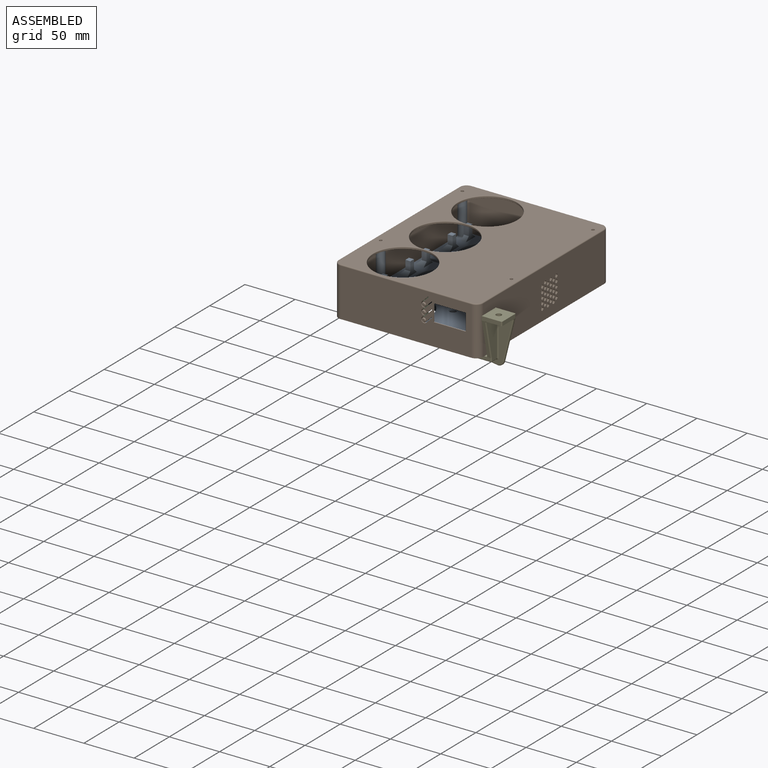
[diagram: assembled view]
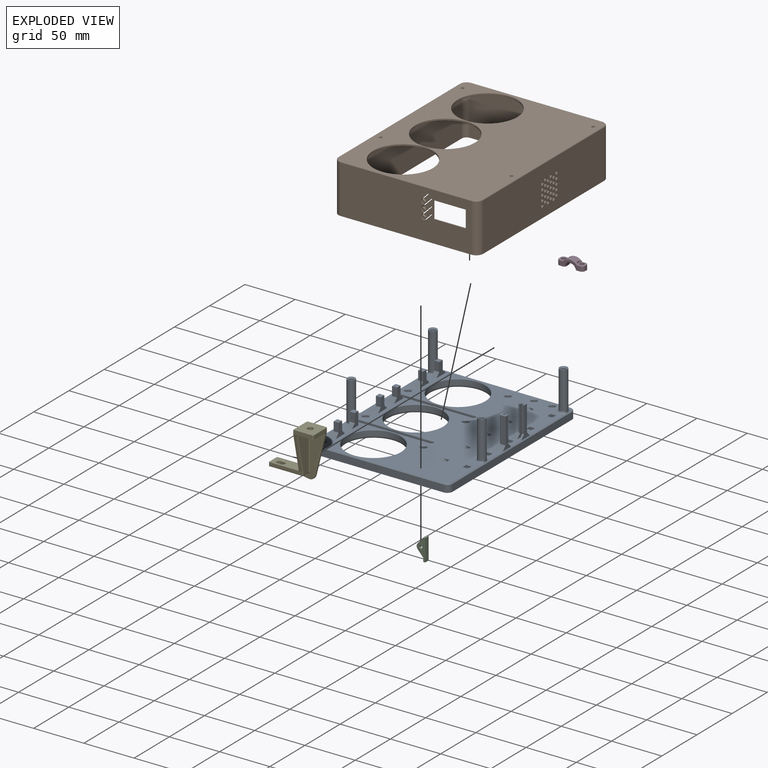
[diagram: exploded view]
GUIDED TOUR — FREECAD ASSEMBLY "heater_enclosure"

This assembly has 5 components, labeled P0..P4 below (a component is one placed body or linked part; the same part can appear more than once), held together by 2 modeled joints plus 4 derived contact edges. A joint is a constraint between two components; its type names the relative motion it leaves free:
  CONTACT — a derived adjacency edge — the two components touch in the source model (clearance under 2% of the assembly's diagonal); it is measured from the geometry, not a modeled constraint,
  FASTENED — locks the two components together rigidly (no relative motion).
Axis/direction vectors are unit vectors and 'through' points are millimeter coordinates, both in the assembly's world frame.

MATES
  1. FASTENED [Fixed] "Joint": P3 <-> P0, direction (0.000, 0.000, 1.000) through (118.33, 10.06, -7.57) mm
  2. FASTENED [Fixed] "Joint001": P4 <-> P0, direction (0.000, 0.000, 1.000) through (123.33, -153.94, -15.57) mm
  3. CONTACT "contact_0_1": P0 <-> P1, contact direction (0.191, 0.054, 0.980) through (-2.24, 13.45, -15.57) mm (derived from contact, not a modeled constraint)
  4. CONTACT "contact_1_2": P1 <-> P2, contact direction (0.000, -1.000, 0.000) through (72.33, -158.94, 12.63) mm (derived from contact, not a modeled constraint)
  5. CONTACT "contact_1_3": P1 <-> P3, contact direction (0.000, 1.000, 0.001) through (102.29, 15.56, -2.74) mm (derived from contact, not a modeled constraint)
  6. CONTACT "contact_1_4": P1 <-> P4, contact direction (0.000, -1.000, -0.022) through (140.31, -159.53, -15.57) mm (derived from contact, not a modeled constraint)

ASSEMBLY ORDER
  1. P3 — the base component [order verified]
  2. P1 [order verified]
  3. P0 [order verified]
  4. P2 [order verified]
  5. P4 [order verified]
Order-tag legend:
  [order verified] — this step's position reverses a verified removal order: the component was checked to insert without passing through the ones already placed.

Of the 5 components, 5 carry a construction recipe — the FreeCAD feature program (sketches with constraints, then the solid features that consume them) that regenerates the part from scratch, quoted from this document or from the linked companion document it references; the rest are supplied as boundary geometry only. The tour below walks the components in assembly order: each is shown spotlighted twice — in the assembled view, then in the exploded view, where a leader line traces a displaced component back to its assembled socket (components that stay in place when exploded have no leader line; saturated green if recipe-attached, orange if geometry-only; every other component desaturated gray) — followed by its recipe or geometry summary and the mates that hold it.
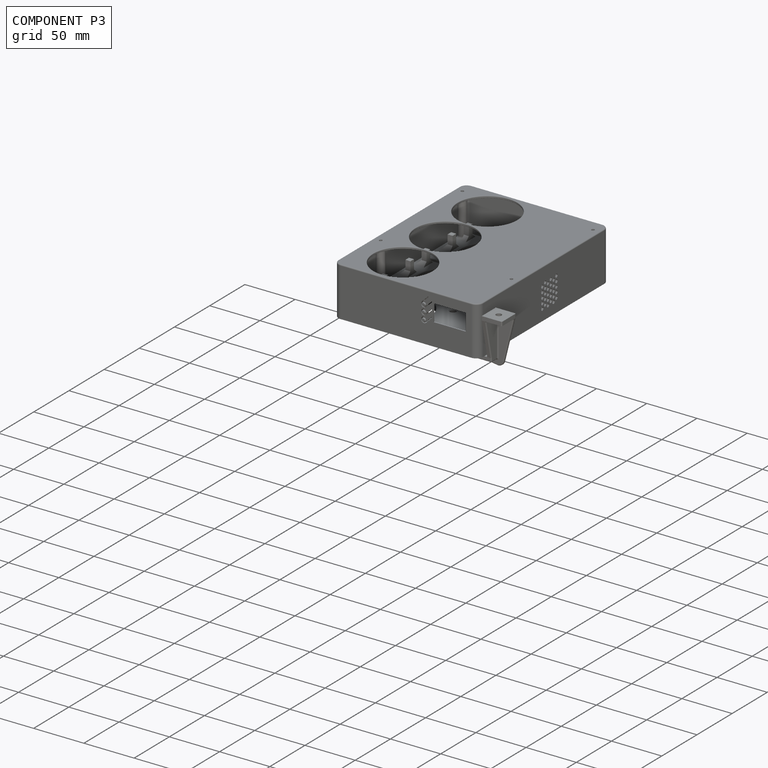
[diagram: component P3 — assembled]
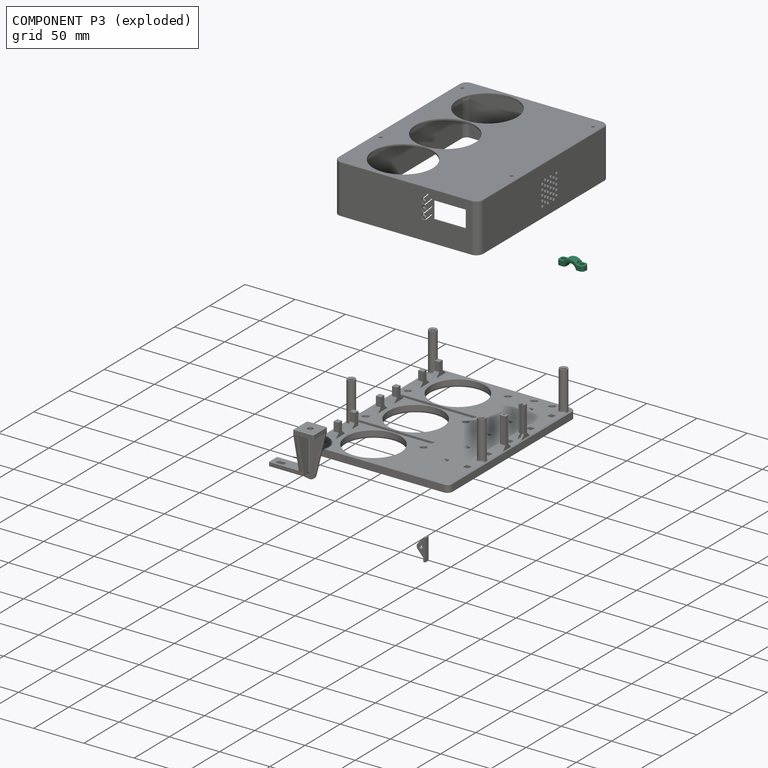
[diagram: component P3 — exploded]
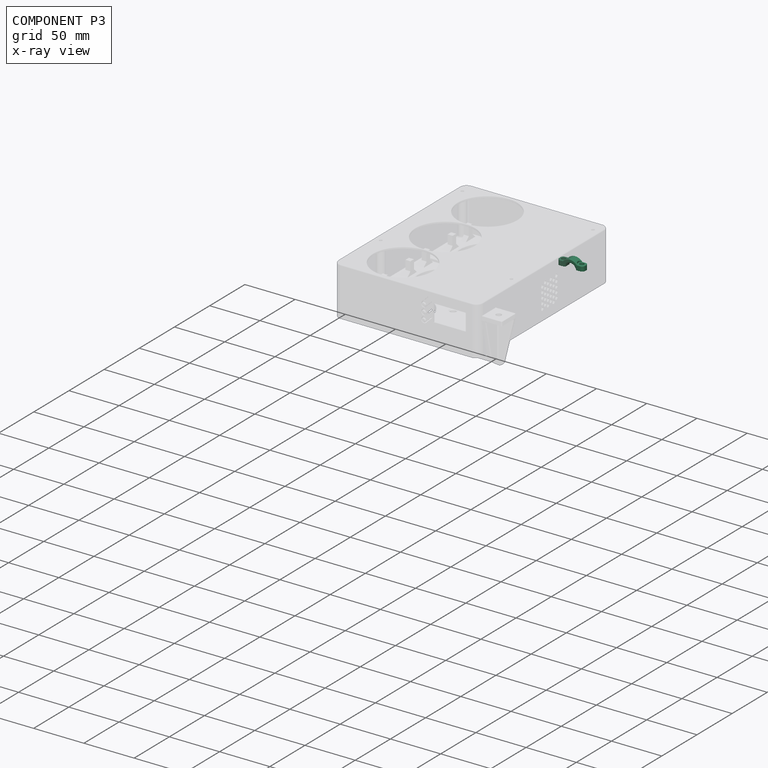
[diagram: component P3 — x-ray view]
COMPONENT P3 — recipe-attached ("cable_clamp", modeled in this document).
Held by: FASTENED mate "Joint" to P0; resting contact with P1 (derived edge).
Construction recipe (the document's own serialized feature program — sketch geometry with constraints, then the solid features built on it; lengths are millimeters unless a unit is written):

FEATURE [Sketcher::SketchObject] Sketch014
  ArcFitTolerance = 1e-06
  AttachmentSupport = -> [XZ_Plane004]
  ExternalTypes = [0]
  FullyConstrained = true
  MakeInternals = false
  MapMode = 5
  Placement = pos=(0,0,0) rot=(1,0,0;1.5708rad)
  sketch-geometry (12):
    g0: ArcOfCircle CenterX=13 CenterY=-0.952943 CenterZ=0 NormalX=0 NormalY=0 NormalZ=1 AngleXU=0 Radius=5.09 StartAngle=0.18833 EndAngle=2.95326
    g1: GeomPoint X=4 Y=0 Z=0
    g2: GeomPoint X=22 Y=0 Z=0
    g3: LineSegment StartX=26 StartY=0 StartZ=0 EndX=22 EndY=0 EndZ=0
    g4: LineSegment StartX=22 StartY=0 StartZ=0 EndX=18 EndY=0 EndZ=0
    g5: LineSegment StartX=8 StartY=0 StartZ=0 EndX=4 EndY=0 EndZ=0
    g6: LineSegment StartX=4 StartY=0 StartZ=0 EndX=0 EndY=0 EndZ=0
    g7: LineSegment StartX=0 StartY=0 StartZ=0 EndX=0 EndY=5 EndZ=0
    g8: LineSegment StartX=0 StartY=5 StartZ=0 EndX=6 EndY=5 EndZ=0
    g9: LineSegment StartX=26 StartY=0 StartZ=0 EndX=26 EndY=5 EndZ=0
    g10: LineSegment StartX=26 StartY=5 StartZ=0 EndX=20 EndY=5 EndZ=0
    g11: ArcOfCircle CenterX=13 CenterY=-0.952943 CenterZ=0 NormalX=0 NormalY=0 NormalZ=1 AngleXU=0 Radius=9.18899 StartAngle=0.704738 EndAngle=2.43685
  constraints (31):
    c: PointOnObject(g6,g-1)
    c: PointOnObject(g3,g-1)
    c: PointOnObject(g0,g-1)
    c: Symmetric(g6,g0,g1)
    c: Symmetric(g3,g0,g2)
    c: DistanceX(g1,g2) = 18
    c: Coincident(g3,g2)
    c: Coincident(g4,g2)
    c: Coincident(g4,g0)
    c: Coincident(g5,g0)
    c: Coincident(g5,g1)
    c: Horizontal(g5)
    c: Coincident(g6,g1)
    c: DistanceX(g5,g5) = 4
    c: Equal(g4,g5)
    c: Radius(g0) = 5.09
    c: Coincident(g7,g6)
    c: PointOnObject(g7,g-2)
    c: Vertical(g7)
    c: Coincident(g8,g7)
    c: Horizontal(g8)
    c: Coincident(g9,g3)
    c: Vertical(g9)
    c: Coincident(g10,g9)
    c: Horizontal(g10)
    c: Equal(g9,g7)
    c: DistanceY(g9,g9) = 5
    c: Coincident(g11,g10)
    c: Coincident(g11,g8)
    c: Coincident(g11,g0)
    c: DistanceX(g10,g10) = 6
FEATURE [PartDesign::Pad] Pad012
  Direction = (0,-1,2e-16)
  Length = 8
  Length2 = 10
  Placement = pos=(0,0,0) rot=(1,0,0;1.5708rad)
  Profile = -> Sketch014
  ReferenceAxis = -> Sketch014 [N_Axis]
  Refine = true
  Suppressed = false
  Type = 0
FEATURE [Sketcher::SketchObject] Sketch015
  ArcFitTolerance = 1e-06
  AttachmentSupport = -> [Pad012]
  ExternalTypes = [0]
  FullyConstrained = true
  MakeInternals = false
  MapMode = 5
  Placement = pos=(0,2.2e-15,5) rot=(0,0,1;3.14159rad)
  sketch-geometry (4):
    g0: Circle CenterX=-4 CenterY=4 CenterZ=0 NormalX=0 NormalY=0 NormalZ=1 AngleXU=0 Radius=2.25
    g1: Circle CenterX=-22 CenterY=4 CenterZ=0 NormalX=0 NormalY=0 NormalZ=1 AngleXU=0 Radius=2.25
    g2: Circle CenterX=-4 CenterY=4 CenterZ=0 NormalX=0 NormalY=0 NormalZ=1 AngleXU=0 Radius=3.75
    g3: Circle CenterX=-22 CenterY=4 CenterZ=0 NormalX=0 NormalY=0 NormalZ=1 AngleXU=0 Radius=3.75
  constraints (10):
    c: DistanceY(g0) = 4
    c: DistanceX(g0) = -4
    c: Horizontal(g1,g0)
    c: DistanceX(g1,g0) = 18
    c: Equal(g0,g1)
    c: Diameter(g0) = 4.5
    c: Coincident(g2,g0)
    c: Coincident(g3,g1)
    c: Equal(g3,g2)
    c: Diameter(g2) = 7.5
FEATURE [PartDesign::Pocket] Pocket017
  BaseFeature = -> Pad012
  Direction = (0,0,-1)
  Length = 5
  Length2 = 5
  Midplane = true
  Placement = pos=(0,0,0) rot=(1,0,0;1.5708rad)
  Profile = -> Sketch015 [Edge1,Edge2]
  ReferenceAxis = -> Sketch015 [N_Axis]
  Refine = true
  Suppressed = false
  Type = 1
FEATURE [PartDesign::Pocket] Pocket018
  BaseFeature = -> Pocket017
  Direction = (0,0,-1)
  Length = 5
  Length2 = 5
  Placement = pos=(0,0,0) rot=(1,0,0;1.5708rad)
  Profile = -> Sketch015 [Edge3,Edge4]
  ReferenceAxis = -> Sketch015 [N_Axis]
  Refine = true
  Reversed = true
  Suppressed = false
  Type = 1
FEATURE [PartDesign::Fillet] Fillet008
  Base = -> Pocket018 [Edge18,Edge13,Edge22,Edge17]
  BaseFeature = -> Pocket018
  Placement = pos=(0,0,0) rot=(1,0,0;1.5708rad)
  Radius = 3
  Refine = true
  SupportTransform = false
  Suppressed = false
  UseAllEdges = false
FEATURE [PartDesign::Fillet] Fillet009
  Base = -> Fillet008 [Edge21,Edge15]
  BaseFeature = -> Fillet008
  Placement = pos=(0,0,0) rot=(1,0,0;1.5708rad)
  Radius = 2
  Refine = true
  SupportTransform = false
  Suppressed = false
  UseAllEdges = false
FEATURE [PartDesign::Fillet] Fillet010
  Base = -> Fillet009 [Edge30,Edge55,Edge32,Edge15]
  BaseFeature = -> Fillet009
  Placement = pos=(0,0,0) rot=(1,0,0;1.5708rad)
  Radius = 0.5
  Refine = true
  SupportTransform = false
  Suppressed = false
  UseAllEdges = false
FEATURE [PartDesign::Body] Body003  label="cable_clamp"
  AllowCompound = false
  Group = -> [Sketch014,Pad012,Sketch015,Pocket017,Pocket018,Fillet008,Fillet009,Fillet010]
  Origin = -> Origin008
  Placement = pos=(96.3284,14.0608,-7.56719) rot=(0,0,1;0rad)
  Tip = -> Fillet010
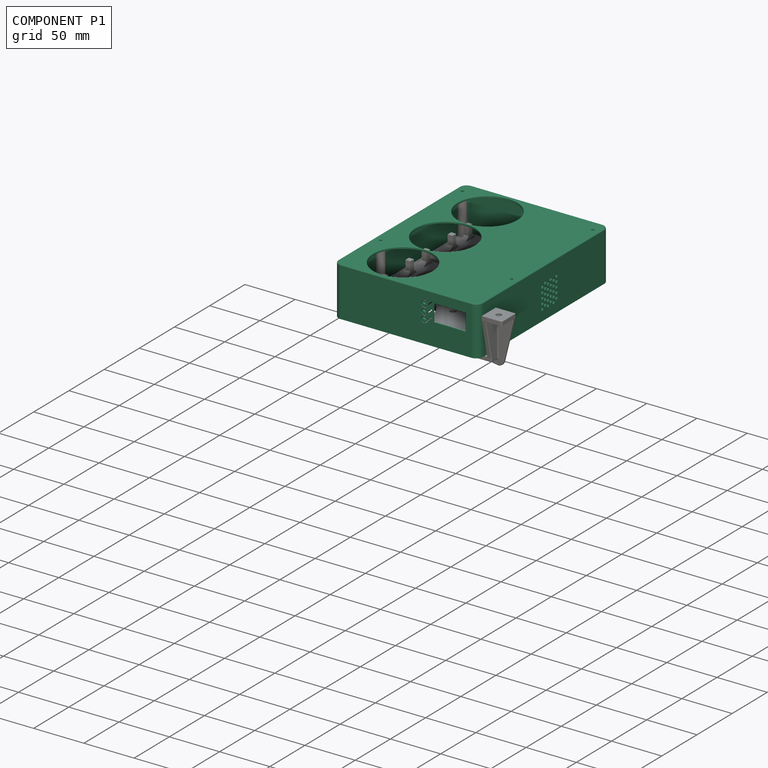
[diagram: component P1 — assembled]
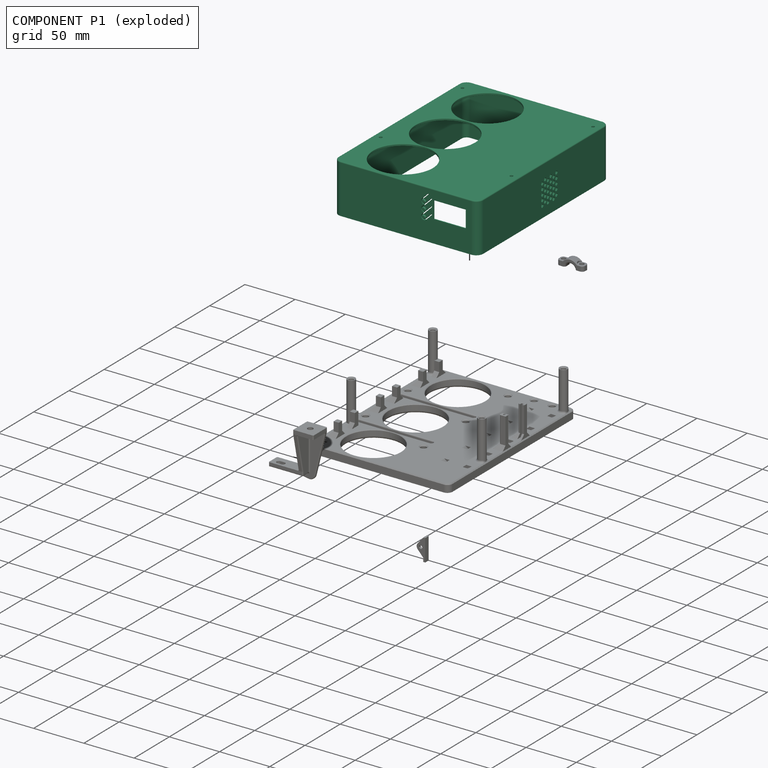
[diagram: component P1 — exploded]
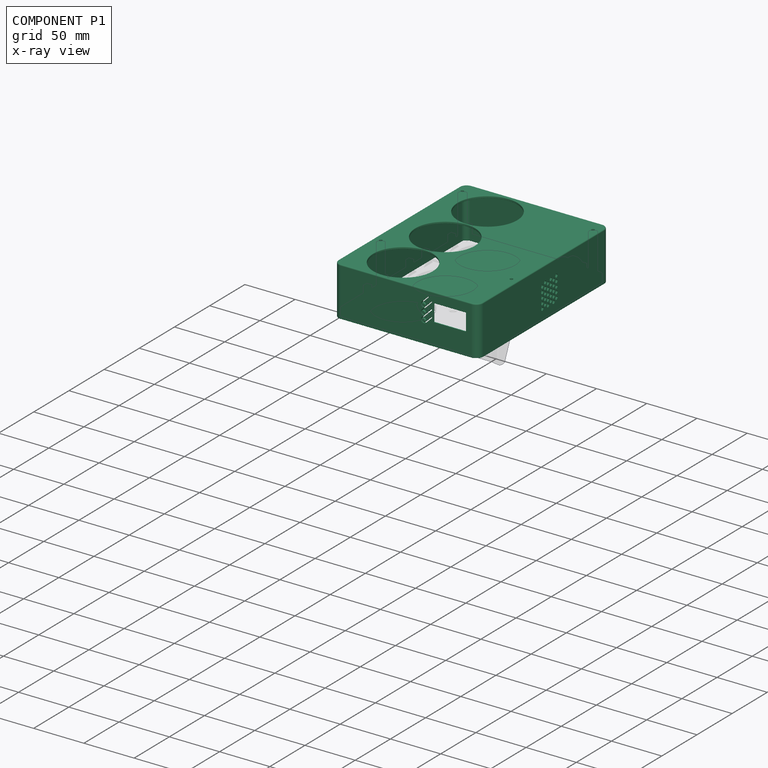
[diagram: component P1 — x-ray view]
COMPONENT P1 — recipe-attached ("lid", modeled in this document).
Held by: resting contact with P0 (derived edge); resting contact with P2 (derived edge); resting contact with P3 (derived edge); resting contact with P4 (derived edge).
Construction recipe (the document's own serialized feature program — sketch geometry with constraints, then the solid features built on it; lengths are millimeters unless a unit is written):

FEATURE [Sketcher::SketchObject] Sketch003
  ArcFitTolerance = 1e-06
  AttachmentSupport = -> [XY_Plane002]
  ExternalTypes = [0]
  FullyConstrained = true
  MakeInternals = false
  MapMode = 5
  sketch-geometry (4):
    g0: LineSegment StartX=0 StartY=1 StartZ=0 EndX=0 EndY=-185 EndZ=0
    g1: LineSegment StartX=0 StartY=-185 StartZ=0 EndX=144 EndY=-185 EndZ=0
    g2: LineSegment StartX=144 StartY=-185 StartZ=0 EndX=144 EndY=1 EndZ=0
    g3: LineSegment StartX=144 StartY=1 StartZ=0 EndX=0 EndY=1 EndZ=0
  constraints (12):
    c: Vertical(g0)
    c: Vertical(g2)
    c: Horizontal(g1)
    c: Horizontal(g3)
    c: DistanceY(g0,g0) = 186
    c: DistanceX(g3,g3) = 144
    c: Coincident(g0,g3)
    c: PointOnObject(g0,g-2)
    c: Coincident(g1,g0)
    c: Coincident(g2,g1)
    c: Coincident(g2,g3)
    c: DistanceY(g-1,g0) = 1
FEATURE [PartDesign::Pad] Pad003
  Direction = (0,0,1)
  Length = 49
  Length2 = 10
  Profile = -> Sketch003
  ReferenceAxis = -> Sketch003 [N_Axis]
  Refine = true
  Suppressed = false
  Type = 0
FEATURE [PartDesign::Fillet] Fillet002
  Base = -> Pad003 [Edge5,Edge2,Edge1,Edge8]
  BaseFeature = -> Pad003
  Radius = 7
  Refine = true
  SupportTransform = false
  Suppressed = false
  UseAllEdges = false
FEATURE [PartDesign::Thickness] Thickness
  Base = -> Fillet002 [Face2]
  BaseFeature = -> Fillet002
  Intersection = false
  Join = 0
  Mode = 0
  Refine = true
  Reversed = true
  SupportTransform = false
  Suppressed = false
  Value = 2
FEATURE [Sketcher::SketchObject] Sketch004
  ArcFitTolerance = 1e-06
  AttachmentSupport = -> [Thickness]
  ExternalTypes = [0]
  FullyConstrained = false
  MakeInternals = false
  MapMode = 5
  Placement = pos=(0,0,49) rot=(0,0,1;0rad)
  sketch-geometry (43):
    g0: LineSegment StartX=0 StartY=0 StartZ=0 EndX=0 EndY=-185 EndZ=0
    g1: LineSegment StartX=140 StartY=0 StartZ=0 EndX=0 EndY=0 EndZ=0
    g2: LineSegment [constr] StartX=16 StartY=-2 StartZ=0 EndX=16 EndY=-62 EndZ=0
    g3: LineSegment [constr] StartX=16 StartY=-62 StartZ=0 EndX=76 EndY=-62 EndZ=0
    g4: LineSegment [constr] StartX=76 StartY=-62 StartZ=0 EndX=76 EndY=-2 EndZ=0
    g5: LineSegment [constr] StartX=76 StartY=-2 StartZ=0 EndX=16 EndY=-2 EndZ=0
    g6: LineSegment [constr] StartX=89 StartY=-7 StartZ=0 EndX=89 EndY=-19 EndZ=0
    g7: LineSegment [constr] StartX=89 StartY=-19 StartZ=0 EndX=76 EndY=-19 EndZ=0
    g8: LineSegment [constr] StartX=3 StartY=-57 StartZ=0 EndX=3 EndY=-45 EndZ=0
    g9: LineSegment [constr] StartX=16 StartY=-45 StartZ=0 EndX=3 EndY=-57 EndZ=0
    g10: LineSegment [constr] StartX=16 StartY=-2 StartZ=0 EndX=76 EndY=-62 EndZ=0
    g11: LineSegment [constr] StartX=16 StartY=-62 StartZ=0 EndX=76 EndY=-2 EndZ=0
    g12: GeomPoint [constr] X=46 Y=-32 Z=0
    g13: Circle [constr] CenterX=46 CenterY=-32 CenterZ=0 NormalX=0 NormalY=0 NormalZ=1 AngleXU=0 Radius=26.5
    g14: LineSegment [constr] StartX=16 StartY=-15 StartZ=0 EndX=3 EndY=-15 EndZ=0
    g15: LineSegment [constr] StartX=3 StartY=-15 StartZ=0 EndX=3 EndY=-33 EndZ=0
    g16: LineSegment [constr] StartX=3 StartY=-33 StartZ=0 EndX=14 EndY=-33 EndZ=0
    g17: Circle CenterX=46 CenterY=-32 CenterZ=0 NormalX=0 NormalY=0 NormalZ=1 AngleXU=0 Radius=29.5
    g18: LineSegment [constr] StartX=3 StartY=-33 StartZ=0 EndX=5.05212 EndY=-38.6382 EndZ=0
    g19: LineSegment [constr] StartX=3 StartY=-15 StartZ=0 EndX=5.05212 EndY=-9.36185 EndZ=0
    g20: LineSegment StartX=15.5 StartY=-15 StartZ=0 EndX=15.5 EndY=-10 EndZ=0
    g21: LineSegment StartX=15.5 StartY=-10 StartZ=0 EndX=10.5 EndY=-10 EndZ=0
    g22: LineSegment StartX=10.5 StartY=-10 StartZ=0 EndX=10.5 EndY=-15 EndZ=0
    g23: LineSegment StartX=10.5 StartY=-15 StartZ=0 EndX=15.5 EndY=-15 EndZ=0
    g24: LineSegment StartX=13.5 StartY=-33 StartZ=0 EndX=8.5 EndY=-33 EndZ=0
    g25: LineSegment StartX=8.5 StartY=-33 StartZ=0 EndX=8.5 EndY=-38 EndZ=0
    g26: LineSegment StartX=8.5 StartY=-38 StartZ=0 EndX=13.5 EndY=-38 EndZ=0
    g27: LineSegment StartX=13.5 StartY=-38 StartZ=0 EndX=13.5 EndY=-33 EndZ=0
    g28: Circle CenterX=82.5 CenterY=-13 CenterZ=0 NormalX=0 NormalY=0 NormalZ=1 AngleXU=0 Radius=2.85
    g29: LineSegment [constr] StartX=76 StartY=-62 StartZ=0 EndX=101 EndY=-62 EndZ=0
    g30: LineSegment [constr] StartX=101 StartY=-62 StartZ=0 EndX=101 EndY=-19 EndZ=0
    g31: LineSegment [constr] StartX=3 StartY=-45 StartZ=0 EndX=16 EndY=-57 EndZ=0
    g32: LineSegment [constr] StartX=16 StartY=-57 StartZ=0 EndX=3 EndY=-57 EndZ=0
    g33: LineSegment [constr] StartX=16 StartY=-45 StartZ=0 EndX=3 EndY=-45 EndZ=0
    g34: Circle CenterX=9.5 CenterY=-51 CenterZ=0 NormalX=0 NormalY=0 NormalZ=1 AngleXU=0 Radius=2.85
    g35: LineSegment [constr] StartX=89 StartY=-7 StartZ=0 EndX=76 EndY=-7 EndZ=0
    g36: LineSegment [constr] StartX=76 StartY=-7 StartZ=0 EndX=89 EndY=-19 EndZ=0
    g37: LineSegment [constr] StartX=89 StartY=-7 StartZ=0 EndX=76 EndY=-19 EndZ=0
    g38: LineSegment [constr] StartX=101 StartY=-19 StartZ=0 EndX=89 EndY=-19 EndZ=0
    g39: Circle CenterX=7 CenterY=-12 CenterZ=0 NormalX=0 NormalY=0 NormalZ=1 AngleXU=0 Radius=1.5
    g40: Circle CenterX=137 CenterY=-12 CenterZ=0 NormalX=0 NormalY=0 NormalZ=1 AngleXU=0 Radius=1.5
    g41: Circle CenterX=7 CenterY=-128 CenterZ=0 NormalX=0 NormalY=0 NormalZ=1 AngleXU=0 Radius=1.5
    g42: Circle CenterX=137 CenterY=-128 CenterZ=0 NormalX=0 NormalY=0 NormalZ=1 AngleXU=0 Radius=1.5
  constraints (119):
    c: Coincident(g1,g0)
    c: Vertical(g0)
    c: Horizontal(g1)
    c: Coincident(g0,g-1)
    c: Coincident(g3,g4)
    c: Coincident(g4,g5)
    c: Coincident(g5,g2)
    c: Vertical(g2)
    c: Vertical(g4)
    c: Horizontal(g3)
    c: Horizontal(g5)
    c: Distance(g2,g4) = 60
    c: Distance(g3,g5) = 60
    c: Vertical(g6)
    c: Coincident(g6,g7)
    c: PointOnObject(g7,g4)
    c: Horizontal(g7)
    c: DistanceX(g4,g6) = 13
    c: DistanceY(g6,g6) = 12
    c: DistanceX(g8,g9) = 13
    c: DistanceY(g8,g8) = 12
    c: Coincident(g9,g8)
    c: Coincident(g10,g2)
    c: Coincident(g10,g3)
    c: Coincident(g11,g3)
    c: Coincident(g11,g4)
    c: Symmetric(g11,g11,g12)
    c: Diameter(g13) = 53
    c: Coincident(g13,g12)
    c: PointOnObject(g14,g2)
    c: Horizontal(g14)
    c: Coincident(g15,g14)
    c: Vertical(g15)
    c: Coincident(g16,g15)
    c: Horizontal(g16)
    c: DistanceX(g14,g14) = 13
    c: DistanceY(g15,g15) = 18
    c: DistanceY(g0,g0) = 185
    c: Diameter(g17) = 59
    c: Coincident(g17,g12)
    c: DistanceX(g1,g1) = 140
    c: Coincident(g18,g15)
    c: Distance(g18,g18) = 6
    c: Angle(g18,g16) = 1.22173
    c: Coincident(g19,g14)
    c: Equal(g19,g18)
    c: Angle(g14,g19) = 1.22173
    c: Coincident(g20,g21)
    c: Coincident(g21,g22)
    c: Coincident(g22,g23)
    c: Coincident(g23,g20)
    c: Vertical(g20)
    c: Vertical(g22)
    c: Horizontal(g21)
    c: Horizontal(g23)
    c: Distance(g20,g22) = 5
    c: Distance(g21,g23) = 5
    c: PointOnObject(g20,g14)
    c: DistanceX(g20,g14) = 0.5
    c: Coincident(g24,g25)
    c: Coincident(g25,g26)
    c: Coincident(g26,g27)
    c: Coincident(g27,g24)
    c: Horizontal(g24)
    c: Horizontal(g26)
    c: Vertical(g25)
    c: Vertical(g27)
    c: Distance(g25,g27) = 5
    c: Distance(g24,g26) = 5
    c: PointOnObject(g24,g16)
    c: DistanceX(g24,g16) = 0.5
    c: Distance(g29) = 25
    c: Coincident(g29,g3)
    c: Horizontal(g29)
    c: Coincident(g30,g29)
    c: PointOnObject(g30,g7)
    c: Vertical(g30)
    c: Coincident(g31,g8)
    c: PointOnObject(g31,g2)
    c: Coincident(g32,g31)
    c: Coincident(g32,g8)
    c: Horizontal(g32)
    c: Coincident(g33,g9)
    c: Coincident(g33,g8)
    c: Horizontal(g33)
    c: Coincident(g2,g3)
    c: PointOnObject(g9,g2)
    c: DistanceY(g2,g31) = 5
    c: Symmetric(g9,g9,g34)
    c: Diameter(g34) = 5.7
    c: Coincident(g35,g6)
    c: PointOnObject(g35,g4)
    c: Horizontal(g35)
    c: Coincident(g36,g35)
    c: Coincident(g36,g6)
    c: Coincident(g37,g6)
    c: Coincident(g37,g7)
    c: PointOnObject(g28,g36)
    c: PointOnObject(g28,g37)
    c: DistanceY(g35,g4) = 5
    c: Equal(g34,g28)
    c: Coincident(g38,g30)
    c: Coincident(g38,g6)
    c: DistanceY(g20,g2) = 8
    c: Vertical(g8)
    c: DistanceY(g2) = -2
    c: DistanceX(g8) = 3
    c: Vertical(g42,g40)
    c: Vertical(g39,g41)
    c: Horizontal(g39,g40)
    c: Horizontal(g41,g42)
    c: Diameter(g41) = 3
    c: Equal(g41,g42)
    c: Equal(g42,g40)
    c: Equal(g40,g39)
    c: DistanceY(g40) = -12
    c: DistanceY(g42) = -128
    c: DistanceX(g41) = 7
    c: DistanceX(g40) = 137
FEATURE [PartDesign::Pocket] Pocket003
  BaseFeature = -> Thickness
  Direction = (0,0,-1)
  Length = 5
  Length2 = 5
  Profile = -> Sketch004 [Edge3]
  ReferenceAxis = -> Sketch004 [N_Axis]
  Refine = true
  Suppressed = false
  Type = 1
FEATURE [PartDesign::LinearPattern] LinearPattern002
  BaseFeature = -> Pocket003
  Direction = -> Sketch004 [V_Axis]
  Length = 120
  Mode = 1
  Occurrences = 3
  Offset = 60
  Originals = -> [Pocket003]
  Refine = true
  Reversed = true
  Suppressed = false
  TransformMode = 0
FEATURE [Sketcher::SketchObject] Sketch006
  ArcFitTolerance = 1e-06
  AttachmentSupport = -> [LinearPattern002]
  ExternalTypes = [0]
  FullyConstrained = true
  MakeInternals = false
  MapMode = 5
  Placement = pos=(144,0,0) rot=(0.57735,0.57735,0.57735;2.0944rad)
  sketch-geometry (15):
    g0: LineSegment StartX=-93.134 StartY=12.5 StartZ=0 EndX=-94.866 EndY=12.5 EndZ=0
    g1: LineSegment StartX=-94.866 StartY=12.5 StartZ=0 EndX=-95.7321 EndY=11 EndZ=0
    g2: LineSegment StartX=-95.7321 StartY=11 StartZ=0 EndX=-94.866 EndY=9.5 EndZ=0
    g3: LineSegment StartX=-94.866 StartY=9.5 StartZ=0 EndX=-93.134 EndY=9.5 EndZ=0
    g4: LineSegment StartX=-93.134 StartY=9.5 StartZ=0 EndX=-92.2679 EndY=11 EndZ=0
    g5: LineSegment StartX=-92.2679 StartY=11 StartZ=0 EndX=-93.134 EndY=12.5 EndZ=0
    g6: Circle [constr] CenterX=-94 CenterY=11 CenterZ=0 NormalX=0 NormalY=0 NormalZ=1 AngleXU=0 Radius=1.73205
    g7: LineSegment [constr] StartX=-94 StartY=11 StartZ=0 EndX=-90 EndY=13.3094 EndZ=0
    g8: LineSegment StartX=-88.2679 StartY=13.3094 StartZ=0 EndX=-89.134 EndY=14.8094 EndZ=0
    g9: LineSegment StartX=-89.134 StartY=14.8094 StartZ=0 EndX=-90.866 EndY=14.8094 EndZ=0
    g10: LineSegment StartX=-90.866 StartY=14.8094 StartZ=0 EndX=-91.7321 EndY=13.3094 EndZ=0
    g11: LineSegment StartX=-91.7321 StartY=13.3094 StartZ=0 EndX=-90.866 EndY=11.8094 EndZ=0
    g12: LineSegment StartX=-90.866 StartY=11.8094 StartZ=0 EndX=-89.134 EndY=11.8094 EndZ=0
    g13: LineSegment StartX=-89.134 StartY=11.8094 StartZ=0 EndX=-88.2679 EndY=13.3094 EndZ=0
    g14: Circle [constr] CenterX=-90 CenterY=13.3094 CenterZ=0 NormalX=0 NormalY=0 NormalZ=1 AngleXU=0 Radius=1.73205
  constraints (36):
    c: Coincident(g0,g1)
    c: Coincident(g1,g2)
    c: Coincident(g2,g3)
    c: Coincident(g3,g4)
    c: Coincident(g4,g5)
    c: Coincident(g5,g0)
    c: Equal(g0, g1-g5) x5
    c: PointOnObject(g0,g6)
    c: PointOnObject(g1,g6)
    c: PointOnObject(g2,g6)
    c: PointOnObject(g3,g6)
    c: PointOnObject(g4,g6)
    c: PointOnObject(g5,g6)
    c: Horizontal(g6,g4)
    c: DistanceY(g3,g0) = 3
    c: Coincident(g7,g6)
    c: Coincident(g8,g9)
    c: Coincident(g9,g10)
    c: Coincident(g10,g11)
    c: Coincident(g11,g12)
    c: Coincident(g12,g13)
    c: Coincident(g13,g8)
    c: Equal(g8, g9-g13) x5
    c: PointOnObject(g8,g14)
    c: PointOnObject(g9,g14)
    c: PointOnObject(g10,g14)
    c: PointOnObject(g11,g14)
    c: PointOnObject(g12,g14)
    c: PointOnObject(g13,g14)
    c: Coincident(g14,g7)
    c: Horizontal(g8,g7)
    c: DistanceY(g12,g8) = 3
    c: Angle(g7) = 0.523599
    c: DistanceY(g6) = 11
    c: DistanceX(g6) = -94
    c: DistanceX(g6,g7) = 4
FEATURE [PartDesign::Pocket] Pocket006
  BaseFeature = -> LinearPattern002
  Direction = (-1,0,0)
  Length = 5
  Length2 = 5
  Profile = -> Sketch006
  ReferenceAxis = -> Sketch006 [N_Axis]
  Refine = true
  Suppressed = false
  Type = 2
FEATURE [PartDesign::LinearPattern] LinearPattern003
  Direction = -> Sketch006 [H_Axis]
  Length = 16
  Mode = 1
  Occurrences = 3
  Offset = 8
  Refine = true
  Suppressed = false
  TransformMode = 0
FEATURE [PartDesign::LinearPattern] LinearPattern004
  Direction = -> Sketch006 [V_Axis]
  Length = 20
  Mode = 1
  Occurrences = 5
  Offset = 5
  Refine = true
  Suppressed = false
  TransformMode = 0
FEATURE [PartDesign::MultiTransform] MultiTransform
  BaseFeature = -> Pocket006
  Originals = -> [Pocket006]
  Refine = true
  Suppressed = false
  TransformMode = 0
  Transformations = -> [LinearPattern003,LinearPattern004]
FEATURE [Sketcher::SketchObject] Sketch007
  ArcFitTolerance = 1e-06
  AttachmentSupport = -> [MultiTransform]
  ExternalTypes = [0]
  FullyConstrained = false
  MakeInternals = false
  MapMode = 5
  Placement = pos=(0,-185,0) rot=(1,0,0;1.5708rad)
  sketch-geometry (39):
    g0: LineSegment StartX=131.5 StartY=39 StartZ=0 EndX=99.5 EndY=39 EndZ=0
    g1: LineSegment StartX=99.5 StartY=39 StartZ=0 EndX=99.5 EndY=22 EndZ=0
    g2: LineSegment StartX=99.5 StartY=22 StartZ=0 EndX=131.5 EndY=22 EndZ=0
    g3: LineSegment StartX=131.5 StartY=22 StartZ=0 EndX=131.5 EndY=39 EndZ=0
    g4: LineSegment StartX=98 StartY=40.5 StartZ=0 EndX=98 EndY=15.5 EndZ=0
    g5: LineSegment StartX=98 StartY=15.5 StartZ=0 EndX=133 EndY=15.5 EndZ=0
    g6: LineSegment StartX=133 StartY=15.5 StartZ=0 EndX=133 EndY=40.5 EndZ=0
    g7: LineSegment StartX=133 StartY=40.5 StartZ=0 EndX=98 EndY=40.5 EndZ=0
    g8: LineSegment StartX=85 StartY=45 StartZ=0 EndX=85 EndY=43 EndZ=0
    g9: LineSegment StartX=85 StartY=11 StartZ=0 EndX=133 EndY=11 EndZ=0
    g10: LineSegment StartX=133 StartY=11 StartZ=0 EndX=133 EndY=13 EndZ=0
    g11: LineSegment StartX=133 StartY=45 StartZ=0 EndX=85 EndY=45 EndZ=0
    g12: LineSegment StartX=85 StartY=13 StartZ=0 EndX=133 EndY=13 EndZ=0
    g13: LineSegment StartX=133 StartY=43 StartZ=0 EndX=85 EndY=43 EndZ=0
    g14: LineSegment StartX=83 StartY=47 StartZ=0 EndX=83 EndY=9 EndZ=0
    g15: LineSegment StartX=83 StartY=9 StartZ=0 EndX=135 EndY=9 EndZ=0
    g16: LineSegment StartX=135 StartY=9 StartZ=0 EndX=135 EndY=47 EndZ=0
    g17: LineSegment StartX=135 StartY=47 StartZ=0 EndX=83 EndY=47 EndZ=0
    g18: LineSegment StartX=85 StartY=13 StartZ=0 EndX=85 EndY=11 EndZ=0
    g19: LineSegment StartX=85 StartY=43 StartZ=0 EndX=85 EndY=13 EndZ=0
    g20: LineSegment StartX=133 StartY=15.5 StartZ=0 EndX=133 EndY=40.5 EndZ=0
    g21: LineSegment StartX=133 StartY=43 StartZ=0 EndX=133 EndY=45 EndZ=0
    g22: LineSegment StartX=133 StartY=13 StartZ=0 EndX=133 EndY=15.5 EndZ=0
    g23: LineSegment StartX=133 StartY=40.5 StartZ=0 EndX=133 EndY=43 EndZ=0
    g24: LineSegment [constr] StartX=85 StartY=35.5 StartZ=0 EndX=98 EndY=35.5 EndZ=0
    g25: LineSegment [constr] StartX=85 StartY=27.5 StartZ=0 EndX=98.0337 EndY=27.5 EndZ=0
    g26: LineSegment [constr] StartX=98 StartY=20.5 StartZ=0 EndX=85 EndY=20.5 EndZ=0
    g27: LineSegment [constr] StartX=90 StartY=35.5 StartZ=0 EndX=90 EndY=20.5 EndZ=0
    g28: ArcOfCircle CenterX=90 CenterY=35.5 CenterZ=0 NormalX=0 NormalY=0 NormalZ=1 AngleXU=0 Radius=2.075 StartAngle=2.35619 EndAngle=5.49779
    g29: LineSegment StartX=88.5328 StartY=36.9672 StartZ=0 EndX=94.331 EndY=42.7655 EndZ=0
    g30: LineSegment StartX=91.4672 StartY=34.0328 StartZ=0 EndX=97.2655 EndY=39.831 EndZ=0
    g31: ArcOfCircle CenterX=90 CenterY=35.5 CenterZ=0 NormalX=0 NormalY=0 NormalZ=1 AngleXU=0 Radius=2.875 StartAngle=2.35619 EndAngle=5.49779
    g32: LineSegment StartX=87.9671 StartY=37.5329 StartZ=0 EndX=93.7653 EndY=43.3312 EndZ=0
    g33: LineSegment StartX=92.0329 StartY=33.4671 StartZ=0 EndX=97.8312 EndY=39.2653 EndZ=0
    g34: ArcOfCircle CenterX=94.0482 CenterY=43.0484 CenterZ=0 NormalX=0 NormalY=0 NormalZ=1 AngleXU=0 Radius=0.4 StartAngle=5.49779 EndAngle=8.63938
    g35: ArcOfCircle CenterX=97.5484 CenterY=39.5482 CenterZ=0 NormalX=0 NormalY=0 NormalZ=1 AngleXU=0 Radius=0.4 StartAngle=5.49779 EndAngle=8.63938
    g36: LineSegment [constr] StartX=97.2655 StartY=39.831 StartZ=0 EndX=97.8312 EndY=39.2653 EndZ=0
    g37: LineSegment [constr] StartX=93.7653 StartY=43.3312 StartZ=0 EndX=94.331 EndY=42.7655 EndZ=0
    g38: LineSegment [constr] StartX=94.331 StartY=42.7655 StartZ=0 EndX=97.2655 EndY=39.831 EndZ=0
  constraints (111):
    c: Coincident(g0,g1)
    c: Coincident(g1,g2)
    c: Coincident(g2,g3)
    c: Coincident(g3,g0)
    c: Horizontal(g0)
    c: Horizontal(g2)
    c: Vertical(g1)
    c: Vertical(g3)
    c: Distance(g1,g3) = 32
    c: Distance(g0,g2) = 17
    c: Coincident(g4,g5)
    c: Coincident(g5,g6)
    c: Coincident(g6,g7)
    c: Coincident(g7,g4)
    c: Vertical(g4)
    c: Vertical(g6)
    c: Horizontal(g5)
    c: Horizontal(g7)
    c: Distance(g4,g6) = 35
    c: Distance(g5,g7) = 25
    c: DistanceX(g0,g6) = 1.5
    c: DistanceY(g0,g6) = 1.5
    c: Coincident(g18,g9)
    c: Coincident(g9,g10)
    c: Coincident(g21,g11)
    c: Coincident(g11,g8)
    c: Horizontal(g9)
    c: Horizontal(g11)
    c: Distance(g8,g21) = 48
    c: Distance(g9,g11) = 34
    c: DistanceY(g6,g21) = 4.5
    c: Horizontal(g12)
    c: Horizontal(g13)
    c: DistanceY(g9,g12) = 2
    c: DistanceY(g13,g21) = 2
    c: Coincident(g14,g15)
    c: Coincident(g15,g16)
    c: Coincident(g16,g17)
    c: Coincident(g17,g14)
    c: Vertical(g14)
    c: Vertical(g16)
    c: Horizontal(g15)
    c: Horizontal(g17)
    c: DistanceY(g15,g9) = 2
    c: DistanceX(g9,g15) = 2
    c: DistanceY(g8,g14) = 2
    c: DistanceX(g14,g8) = 2
    c: DistanceY(g16) = 47
    c: DistanceX(g16) = 135
    c: Vertical(g8)
    c: Vertical(g18)
    c: Coincident(g12,g18)
    c: Coincident(g13,g8)
    c: Coincident(g19,g8)
    c: Coincident(g19,g12)
    c: Vertical(g19)
    c: Vertical(g10)
    c: PointOnObject(g6,g10)
    c: Coincident(g12,g10)
    c: PointOnObject(g13,g10)
    c: Coincident(g20,g5)
    c: Vertical(g21)
    c: Coincident(g20,g6)
    c: Coincident(g21,g13)
    c: Coincident(g10,g22)
    c: Coincident(g22,g5)
    c: Coincident(g23,g6)
    c: Coincident(g23,g13)
    c: PointOnObject(g24,g19)
    c: PointOnObject(g24,g4)
    c: Horizontal(g24)
    c: PointOnObject(g25,g19)
    c: Horizontal(g25)
    c: PointOnObject(g26,g4)
    c: PointOnObject(g26,g19)
    c: Horizontal(g26)
    c: DistanceY(g9,g26) = 9.5
    c: DistanceY(g9,g25) = 16.5
    c: DistanceY(g24,g8) = 9.5
    c: PointOnObject(g27,g24)
    c: Vertical(g27)
    c: PointOnObject(g27,g26)
    c: DistanceX(g26,g27) = 5
    c: Tangent(g28,g29) = 1.5708
    c: Tangent(g28,g30) = -1.5708
    c: Coincident(g28,g27)
    c: Tangent(g31,g32) = 1.5708
    c: Tangent(g31,g33) = -1.5708
    c: Coincident(g31,g27)
    c: Coincident(g35,g30)
    c: Coincident(g35,g33)
    c: Coincident(g29,g34)
    c: Coincident(g32,g34)
    c: Coincident(g36,g30)
    c: Coincident(g36,g33)
    c: PointOnObject(g35,g36)
    c: Perpendicular(g33,g36)
    c: Coincident(g37,g32)
    c: Coincident(g37,g29)
    c: PointOnObject(g34,g37)
    c: Perpendicular(g29,g37)
    c: Coincident(g38,g29)
    c: Coincident(g38,g30)
    c: Parallel(g36,g38)
    c: Parallel(g38,g37)
    c: Parallel(g30,g33)
    c: Parallel(g29,g32)
    c: Angle(g33) = 0.785398
    c: Distance(g33,g30) = 0.8
    c: Distance(g29,g30) = 4.15
    c: Distance(g31,g33) = 8.2
FEATURE [PartDesign::Pocket] Pocket007
  BaseFeature = -> MultiTransform
  Direction = (0,1,-2e-16)
  Length = 5
  Length2 = 5
  Profile = -> Sketch007 [Edge4,Edge3,Edge2,Edge1]
  ReferenceAxis = -> Sketch007 [N_Axis]
  Refine = true
  Suppressed = false
  Type = 2
FEATURE [PartDesign::Pocket] Pocket008
  BaseFeature = -> Pocket007
  Direction = (0,1,-2e-16)
  Length = 10
  Length2 = -1
  Profile = -> Sketch007 [Edge6,Edge5,Edge20,Edge7]
  ReferenceAxis = -> Sketch007 [N_Axis]
  Refine = true
  Suppressed = false
  Type = 4
FEATURE [PartDesign::Pad] Pad005
  BaseFeature = -> Pocket008
  Direction = (0,-1,2e-16)
  Length = 5
  Length2 = 10
  Profile = -> Sketch007 [Edge17,Edge11,Edge10,Edge12,Edge13,Edge9,Edge14,Edge15]
  ReferenceAxis = -> Sketch007 [N_Axis]
  Refine = true
  Reversed = true
  Suppressed = false
  Type = 0
FEATURE [PartDesign::Pad] Pad006
  BaseFeature = -> Pad005
  Direction = (0,-1,2e-16)
  Length = 6
  Length2 = 10
  Profile = -> Sketch007 [Edge23,Edge22,Edge21,Edge24,Edge14,Edge13,Edge8,Edge7,Edge12,Edge18,Edge11,Edge10,Edge16,Edge15]
  ReferenceAxis = -> Sketch007 [N_Axis]
  Refine = true
  Reversed = true
  Suppressed = false
  Type = 0
FEATURE [PartDesign::Pocket] Pocket009
  BaseFeature = -> Pad006
  Direction = (0,1,-2e-16)
  Length = 5
  Length2 = 5
  Profile = -> Sketch007 [Edge26,Edge25,Edge32,Edge31,Edge30,Edge29,Edge28,Edge27]
  ReferenceAxis = -> Sketch007 [N_Axis]
  Refine = true
  Suppressed = false
  Type = 2
FEATURE [PartDesign::LinearPattern] LinearPattern005
  BaseFeature = -> Pocket009
  Direction = -> Sketch007 [V_Axis]
  Length = 14
  Mode = 1
  Occurrences = 3
  Offset = 7
  Originals = -> [Pocket009]
  Refine = true
  Reversed = true
  Suppressed = false
  TransformMode = 0
FEATURE [Sketcher::SketchObject] Sketch008
  ArcFitTolerance = 1e-06
  AttachmentSupport = -> [LinearPattern005]
  ExternalGeometry = -> [LinearPattern005]
  ExternalTypes = [0,0]
  FullyConstrained = true
  MakeInternals = false
  MapMode = 5
  Placement = pos=(0,-183,0) rot=(0,0.707107,0.707107;3.14159rad)
  sketch-geometry (7):
    g0: LineSegment [constr] StartX=-137 StartY=28 StartZ=0 EndX=-81 EndY=28 EndZ=0
    g1: GeomPoint [constr] X=-135 Y=28 Z=0
    g2: GeomPoint [constr] X=-83 Y=28 Z=0
    g3: Circle CenterX=-137 CenterY=28 CenterZ=0 NormalX=0 NormalY=0 NormalZ=1 AngleXU=0 Radius=4
    g4: Circle CenterX=-81 CenterY=28 CenterZ=0 NormalX=0 NormalY=0 NormalZ=1 AngleXU=0 Radius=4
    g5: Circle CenterX=-137 CenterY=28 CenterZ=0 NormalX=0 NormalY=0 NormalZ=1 AngleXU=0 Radius=2.35
    g6: Circle CenterX=-81 CenterY=28 CenterZ=0 NormalX=0 NormalY=0 NormalZ=1 AngleXU=0 Radius=2.35
  constraints (14):
    c: Horizontal(g0)
    c: Symmetric(g-3,g-3,g1)
    c: Symmetric(g-4,g-4,g2)
    c: PointOnObject(g2,g0)
    c: Diameter(g3) = 8
    c: Coincident(g3,g0)
    c: Coincident(g4,g0)
    c: Equal(g4,g3)
    c: DistanceX(g0,g1) = 2
    c: DistanceX(g2,g0) = 2
    c: Diameter(g5) = 4.7
    c: Coincident(g5,g0)
    c: Coincident(g6,g0)
    c: Equal(g6,g5)
FEATURE [PartDesign::Pad] Pad007
  BaseFeature = -> LinearPattern005
  Direction = (0,1,-2e-16)
  Length = 6
  Length2 = 10
  Profile = -> Sketch008 [Edge1,Edge2]
  ReferenceAxis = -> Sketch008 [N_Axis]
  Refine = true
  Suppressed = false
  Type = 0
FEATURE [PartDesign::Pocket] Pocket010
  BaseFeature = -> Pad007
  Direction = (0,-1,2e-16)
  Length = 1
  Length2 = 13
  Profile = -> Sketch008 [Edge3,Edge4]
  ReferenceAxis = -> Sketch008 [N_Axis]
  Refine = true
  Suppressed = false
  Type = 4
FEATURE [Sketcher::SketchObject] Sketch009
  ArcFitTolerance = 1e-06
  AttachmentSupport = -> [Pocket010]
  ExternalGeometry = -> [Pocket010]
  ExternalTypes = [0]
  FullyConstrained = true
  MakeInternals = false
  MapMode = 5
  Placement = pos=(0,-185,0) rot=(1,0,0;1.5708rad)
  sketch-geometry (1):
    g0: Circle CenterX=90 CenterY=35.5 CenterZ=0 NormalX=0 NormalY=0 NormalZ=1 AngleXU=0 Radius=2.075
  constraints (2):
    c: Coincident(g0,g-3)
    c: PointOnObject(g-3,g0)
FEATURE [PartDesign::Pad] Pad008
  BaseFeature = -> Pocket010
  Direction = (0,-1,2e-16)
  Length = 1
  Length2 = 10
  Profile = -> Sketch009 [Edge1]
  ReferenceAxis = -> Sketch009 [N_Axis]
  Refine = true
  Suppressed = false
  Type = 0
FEATURE [PartDesign::LinearPattern] LinearPattern006
  BaseFeature = -> Pad008
  Direction = -> Sketch009 [V_Axis]
  Length = 14
  Mode = 1
  Occurrences = 3
  Offset = 7
  Originals = -> [Pad008]
  Refine = true
  Reversed = true
  Suppressed = false
  TransformMode = 0
FEATURE [PartDesign::Chamfer] Chamfer005
  Angle = 35
  Base = -> LinearPattern006 [Edge133,Edge785,Edge783]
  BaseFeature = -> LinearPattern006
  ChamferType = 2
  FlipDirection = false
  Refine = true
  Size = 0.9
  Size2 = 1
  SupportTransform = false
  Suppressed = false
  UseAllEdges = false
FEATURE [PartDesign::Chamfer] Chamfer006
  Angle = 45
  Base = -> Chamfer005 [Edge786,Edge787]
  BaseFeature = -> Chamfer005
  ChamferType = 0
  FlipDirection = false
  Refine = true
  Size = 1
  Size2 = 1
  SupportTransform = false
  Suppressed = false
  UseAllEdges = false
FEATURE [PartDesign::Pocket] Pocket013
  BaseFeature = -> Chamfer006
  Direction = (0,0,-1)
  Length = 5
  Length2 = 5
  Profile = -> Sketch004 [Edge14,Edge15,Edge17,Edge16]
  ReferenceAxis = -> Sketch004 [N_Axis]
  Refine = true
  Suppressed = false
  Type = 1
FEATURE [Sketcher::SketchObject] Sketch010
  ArcFitTolerance = 1e-06
  AttachmentSupport = -> [Pocket013]
  ExternalTypes = [0]
  FullyConstrained = true
  MakeInternals = false
  MapMode = 5
  Placement = pos=(0,1,0) rot=(0,0.707107,0.707107;3.14159rad)
  sketch-geometry (4):
    g0: ArcOfCircle CenterX=-114 CenterY=13 CenterZ=0 NormalX=0 NormalY=0 NormalZ=1 AngleXU=0 Radius=6.5 StartAngle=-1.776e-13 EndAngle=3.14159
    g1: ArcOfCircle CenterX=-114 CenterY=-3 CenterZ=0 NormalX=0 NormalY=0 NormalZ=1 AngleXU=0 Radius=6.5 StartAngle=3.14159 EndAngle=6.28319
    g2: LineSegment StartX=-107.5 StartY=13 StartZ=0 EndX=-107.5 EndY=-3 EndZ=0
    g3: LineSegment StartX=-120.5 StartY=13 StartZ=0 EndX=-120.5 EndY=-3 EndZ=0
  constraints (10):
    c: Tangent(g0,g2) = 1.5708
    c: Tangent(g0,g3) = -1.5708
    c: Tangent(g1,g2) = 1.5708
    c: Tangent(g1,g3) = -1.5708
    c: Equal(g0,g1)
    c: Vertical(g3)
    c: DistanceX(g1,g1) = 13
    c: DistanceY(g1,g0) = 16
    c: DistanceY(g0) = 13
    c: DistanceX(g0) = -114
FEATURE [PartDesign::Pocket] Pocket014
  BaseFeature = -> Pocket013
  Direction = (0,-1,2e-16)
  Length = 5
  Length2 = 5
  Profile = -> Sketch010
  ReferenceAxis = -> Sketch010 [N_Axis]
  Refine = true
  Suppressed = false
  Type = 2
FEATURE [PartDesign::Fillet] Fillet007
  Base = -> Pocket014 [Face235]
  BaseFeature = -> Pocket014
  Radius = 0.9
  Refine = true
  SupportTransform = false
  Suppressed = false
  UseAllEdges = false
FEATURE [Sketcher::SketchObject] Sketch011
  ArcFitTolerance = 1e-06
  AttachmentSupport = -> [Chamfer006]
  ExternalTypes = [0]
  FullyConstrained = false
  MakeInternals = false
  MapMode = 5
  Placement = pos=(0,-183,0) rot=(0,0.707107,0.707107;3.14159rad)
  sketch-geometry (4):
    g0: ArcOfCircle CenterX=-94.601 CenterY=42.4766 CenterZ=0 NormalX=0 NormalY=0 NormalZ=1 AngleXU=0 Radius=0.517356 StartAngle=5.49779 EndAngle=8.63938
    g1: ArcOfCircle CenterX=-97.4408 CenterY=39.6368 CenterZ=0 NormalX=0 NormalY=0 NormalZ=1 AngleXU=0 Radius=0.517356 StartAngle=2.35619 EndAngle=5.49779
    g2: LineSegment StartX=-94.2352 StartY=42.1108 StartZ=0 EndX=-97.075 EndY=39.271 EndZ=0
    g3: LineSegment StartX=-94.9668 StartY=42.8424 StartZ=0 EndX=-97.8066 EndY=40.0026 EndZ=0
  constraints (6):
    c: Tangent(g0,g2) = 1.5708
    c: Tangent(g0,g3) = -1.5708
    c: Tangent(g1,g2) = 1.5708
    c: Tangent(g1,g3) = -1.5708
    c: Equal(g0,g1)
    c: Angle(g-1,g2) = 0.785398
FEATURE [PartDesign::Pocket] Pocket015
  BaseFeature = -> Fillet007
  Direction = (0,-1,0)
  Length = 1
  Length2 = 5
  Profile = -> Sketch011
  ReferenceAxis = -> Sketch011 [N_Axis]
  Refine = true
  Suppressed = false
  Type = 0
FEATURE [PartDesign::Fillet] Fillet011
  Base = -> Pocket015 [Edge49]
  BaseFeature = -> Pocket015
  Radius = 1
  Refine = true
  SupportTransform = false
  Suppressed = false
  UseAllEdges = false
FEATURE [PartDesign::Fillet] Fillet012
  Base = -> Fillet011 [Edge233,Edge236,Edge238,Edge693,Edge689,Edge683]
  BaseFeature = -> Fillet011
  Radius = 0.4
  Refine = true
  SupportTransform = false
  Suppressed = false
  UseAllEdges = false
FEATURE [PartDesign::Body] Body001  label="lid"
  AllowCompound = false
  Group = -> [Sketch003,Pad003,Fillet002,Thickness,Sketch004,Pocket003,LinearPattern002,Sketch006,Pocket006,MultiTransform,LinearPattern003,LinearPattern004,Sketch007,Pocket007,Pocket008,Pad005,Pad006,Pocket009,LinearPattern005,Sketch008,Pad007,Pocket010,Sketch009,Pad008,LinearPattern006,Chamfer005,Chamfer006,Pocket013,Sketch010,Pocket014,Fillet007,Sketch011,Pocket015,Fillet011,Fillet012]
  Origin = -> Origin004
  Placement = pos=(-4.67165,18.0608,-15.5672) rot=(0,0,1;0rad)
  Tip = -> Fillet012
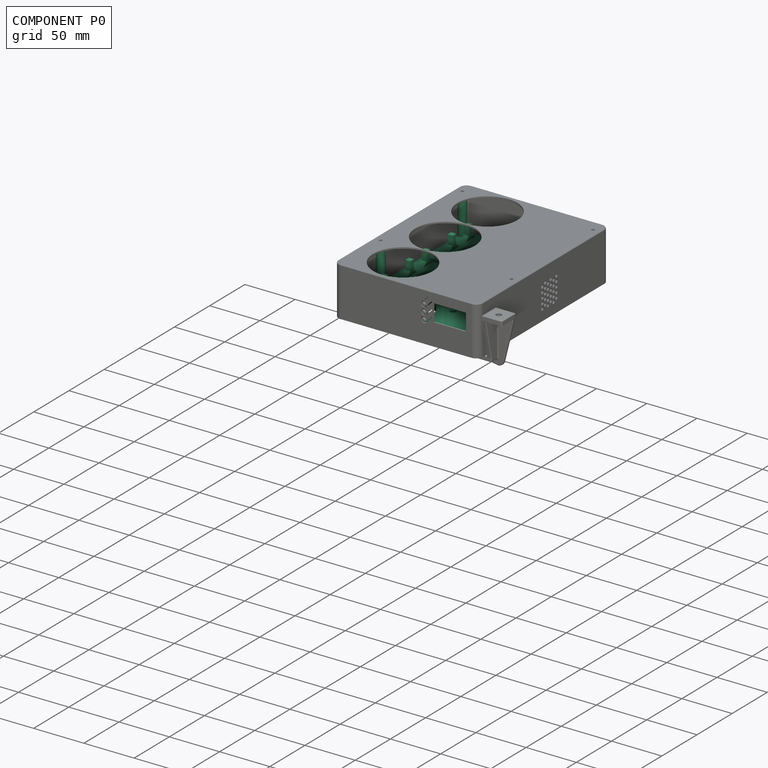
[diagram: component P0 — assembled]
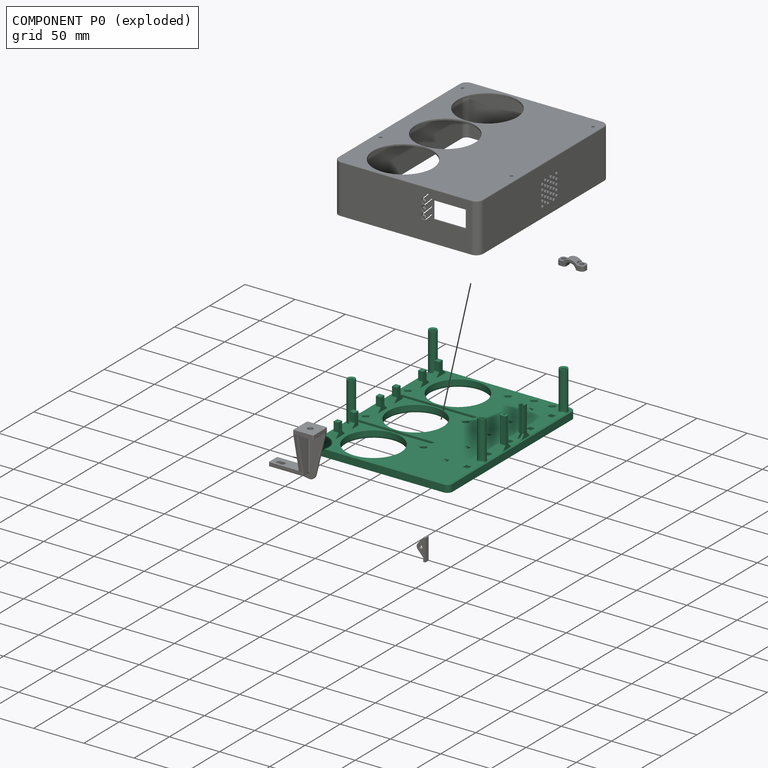
[diagram: component P0 — exploded]
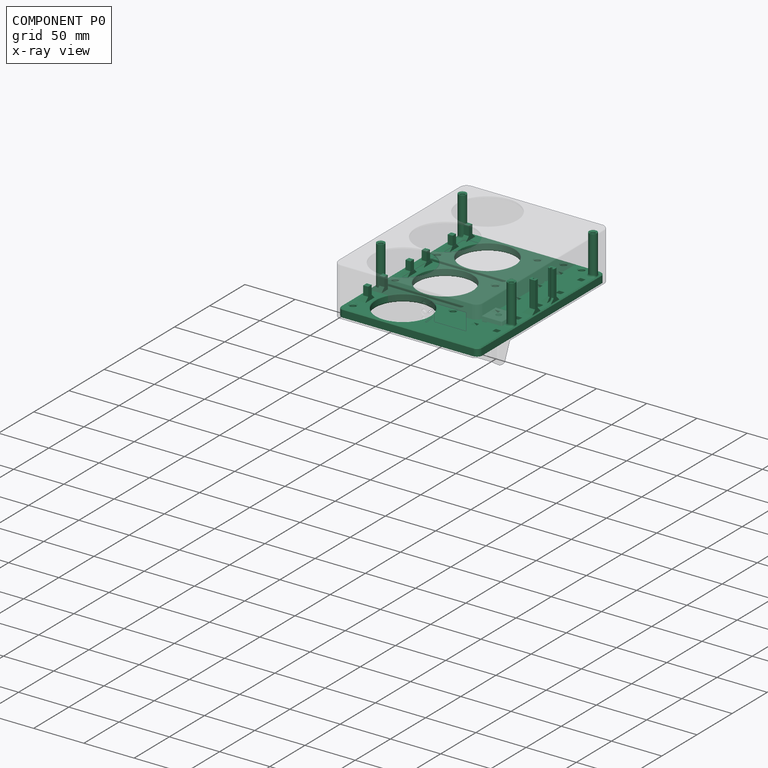
[diagram: component P0 — x-ray view]
COMPONENT P0 — recipe-attached ("bottom_plate", modeled in this document).
Held by: FASTENED mate "Joint" to P3; FASTENED mate "Joint001" to P4; resting contact with P1 (derived edge).
Construction recipe (the document's own serialized feature program — sketch geometry with constraints, then the solid features built on it; lengths are millimeters unless a unit is written):

FEATURE [Sketcher::SketchObject] Sketch
  ArcFitTolerance = 1e-06
  AttachmentSupport = -> [XY_Plane001]
  ExternalTypes = [0]
  FullyConstrained = true
  MakeInternals = false
  MapMode = 5
  sketch-geometry (55):
    g0: LineSegment StartX=0 StartY=0 StartZ=0 EndX=0 EndY=-180 EndZ=0
    g1: LineSegment StartX=0 StartY=-180 StartZ=0 EndX=140 EndY=-180 EndZ=0
    g2: LineSegment StartX=140 StartY=-180 StartZ=0 EndX=140 EndY=0 EndZ=0
    g3: LineSegment StartX=140 StartY=0 StartZ=0 EndX=0 EndY=0 EndZ=0
    g4: LineSegment [constr] StartX=14 StartY=0 StartZ=0 EndX=14 EndY=-60 EndZ=0
    g5: LineSegment [constr] StartX=14 StartY=-60 StartZ=0 EndX=74 EndY=-60 EndZ=0
    g6: LineSegment [constr] StartX=74 StartY=-60 StartZ=0 EndX=74 EndY=0 EndZ=0
    g7: LineSegment [constr] StartX=74 StartY=0 StartZ=0 EndX=14 EndY=0 EndZ=0
    g8: LineSegment [constr] StartX=87 StartY=-5 StartZ=0 EndX=87 EndY=-17 EndZ=0
    g9: LineSegment [constr] StartX=87 StartY=-17 StartZ=0 EndX=74 EndY=-17 EndZ=0
    g10: LineSegment [constr] StartX=1 StartY=-55 StartZ=0 EndX=1 EndY=-43 EndZ=0
    g11: LineSegment [constr] StartX=14 StartY=-43 StartZ=0 EndX=1 EndY=-55 EndZ=0
    g12: LineSegment [constr] StartX=14 StartY=0 StartZ=0 EndX=74 EndY=-60 EndZ=0
    g13: LineSegment [constr] StartX=14 StartY=-60 StartZ=0 EndX=74 EndY=0 EndZ=0
    g14: GeomPoint [constr] X=44 Y=-30 Z=0
    g15: Circle [constr] CenterX=44 CenterY=-30 CenterZ=0 NormalX=0 NormalY=0 NormalZ=1 AngleXU=0 Radius=26.5
    g16: LineSegment [constr] StartX=14 StartY=-13 StartZ=0 EndX=1 EndY=-13 EndZ=0
    g17: LineSegment [constr] StartX=1 StartY=-13 StartZ=0 EndX=1 EndY=-31 EndZ=0
    g18: LineSegment [constr] StartX=1 StartY=-31 StartZ=0 EndX=14 EndY=-31 EndZ=0
    g19: Circle CenterX=44 CenterY=-30 CenterZ=0 NormalX=0 NormalY=0 NormalZ=1 AngleXU=0 Radius=27
    g20: LineSegment [constr] StartX=1 StartY=-31 StartZ=0 EndX=3.05212 EndY=-36.6382 EndZ=0
    g21: LineSegment [constr] StartX=1 StartY=-13 StartZ=0 EndX=3.05212 EndY=-7.36184 EndZ=0
    g22: LineSegment StartX=13.5 StartY=-13 StartZ=0 EndX=13.5 EndY=-8 EndZ=0
    g23: LineSegment StartX=13.5 StartY=-8 StartZ=0 EndX=8.5 EndY=-8 EndZ=0
    g24: LineSegment StartX=8.5 StartY=-8 StartZ=0 EndX=8.5 EndY=-13 EndZ=0
    g25: LineSegment StartX=8.5 StartY=-13 StartZ=0 EndX=13.5 EndY=-13 EndZ=0
    g26: LineSegment StartX=13.5 StartY=-31 StartZ=0 EndX=8.5 EndY=-31 EndZ=0
    g27: LineSegment StartX=8.5 StartY=-31 StartZ=0 EndX=8.5 EndY=-36 EndZ=0
    g28: LineSegment StartX=8.5 StartY=-36 StartZ=0 EndX=13.5 EndY=-36 EndZ=0
    g29: LineSegment StartX=13.5 StartY=-36 StartZ=0 EndX=13.5 EndY=-31 EndZ=0
    g30: Circle CenterX=80.5 CenterY=-11 CenterZ=0 NormalX=0 NormalY=0 NormalZ=1 AngleXU=0 Radius=2.85
    g31: LineSegment [constr] StartX=74 StartY=-60 StartZ=0 EndX=99 EndY=-60 EndZ=0
    g32: LineSegment [constr] StartX=99 StartY=-60 StartZ=0 EndX=99 EndY=-17 EndZ=0
    g33: LineSegment [constr] StartX=1 StartY=-43 StartZ=0 EndX=14 EndY=-55 EndZ=0
    g34: LineSegment [constr] StartX=14 StartY=-55 StartZ=0 EndX=1 EndY=-55 EndZ=0
    g35: LineSegment [constr] StartX=14 StartY=-43 StartZ=0 EndX=1 EndY=-43 EndZ=0
    g36: Circle CenterX=7.5 CenterY=-49 CenterZ=0 NormalX=0 NormalY=0 NormalZ=1 AngleXU=0 Radius=2.85
    g37: LineSegment [constr] StartX=87 StartY=-5 StartZ=0 EndX=74 EndY=-5 EndZ=0
    g38: LineSegment [constr] StartX=74 StartY=-5 StartZ=0 EndX=87 EndY=-17 EndZ=0
    g39: LineSegment [constr] StartX=87 StartY=-5 StartZ=0 EndX=74 EndY=-17 EndZ=0
    g40: LineSegment [constr] StartX=99 StartY=-17 StartZ=0 EndX=87 EndY=-17 EndZ=0
    g41: Circle CenterX=14 CenterY=-10 CenterZ=0 NormalX=0 NormalY=0 NormalZ=1 AngleXU=0 Radius=2.85
    g42: Circle CenterX=126 CenterY=-10 CenterZ=0 NormalX=0 NormalY=0 NormalZ=1 AngleXU=0 Radius=2.85
    g43: Circle CenterX=14 CenterY=-170 CenterZ=0 NormalX=0 NormalY=0 NormalZ=1 AngleXU=0 Radius=2.85
    g44: Circle CenterX=126 CenterY=-170 CenterZ=0 NormalX=0 NormalY=0 NormalZ=1 AngleXU=0 Radius=2.85
    g45: Circle CenterX=5 CenterY=-126 CenterZ=0 NormalX=0 NormalY=0 NormalZ=1 AngleXU=0 Radius=4
    g46: Circle CenterX=5 CenterY=-10 CenterZ=0 NormalX=0 NormalY=0 NormalZ=1 AngleXU=0 Radius=4
    g47: Circle CenterX=135 CenterY=-126 CenterZ=0 NormalX=0 NormalY=0 NormalZ=1 AngleXU=0 Radius=4
    g48: Circle CenterX=135 CenterY=-10 CenterZ=0 NormalX=0 NormalY=0 NormalZ=1 AngleXU=0 Radius=4
    g49: Circle CenterX=103 CenterY=-6 CenterZ=0 NormalX=0 NormalY=0 NormalZ=1 AngleXU=0 Radius=2.85
    g50: Circle CenterX=121 CenterY=-6 CenterZ=0 NormalX=0 NormalY=0 NormalZ=1 AngleXU=0 Radius=2.85
    g51: ArcOfCircle CenterX=7.5 CenterY=-60 CenterZ=0 NormalX=0 NormalY=0 NormalZ=1 AngleXU=0 Radius=2 StartAngle=1.5708 EndAngle=4.71239
    g52: ArcOfCircle CenterX=80.5 CenterY=-60 CenterZ=0 NormalX=0 NormalY=0 NormalZ=1 AngleXU=0 Radius=2 StartAngle=4.71239 EndAngle=7.85398
    g53: LineSegment StartX=7.5 StartY=-58 StartZ=0 EndX=80.5 EndY=-58 EndZ=0
    g54: LineSegment StartX=7.5 StartY=-62 StartZ=0 EndX=80.5 EndY=-62 EndZ=0
  constraints (153):
    c: Coincident(g0,g1)
    c: Coincident(g1,g2)
    c: Coincident(g2,g3)
    c: Coincident(g3,g0)
    c: Vertical(g0)
    c: Vertical(g2)
    c: Horizontal(g1)
    c: Horizontal(g3)
    c: Coincident(g0,g-1)
    c: Coincident(g5,g6)
    c: Coincident(g6,g7)
    c: Coincident(g7,g4)
    c: Vertical(g4)
    c: Vertical(g6)
    c: Horizontal(g5)
    c: Horizontal(g7)
    c: Distance(g4,g6) = 60
    c: Distance(g5,g7) = 60
    c: Vertical(g8)
    c: Coincident(g8,g9)
    c: PointOnObject(g9,g6)
    c: Horizontal(g9)
    c: Vertical(g10)
    c: DistanceX(g6,g8) = 13
    c: DistanceY(g8,g8) = 12
    c: DistanceX(g10,g11) = 13
    c: DistanceY(g10,g10) = 12
    c: Coincident(g11,g10)
    c: Coincident(g12,g4)
    c: Coincident(g12,g5)
    c: Coincident(g13,g5)
    c: Coincident(g13,g6)
    c: Symmetric(g13,g13,g14)
    c: Diameter(g15) = 53
    c: Coincident(g15,g14)
    c: PointOnObject(g16,g4)
    c: Horizontal(g16)
    c: Coincident(g17,g16)
    c: Vertical(g17)
    c: Coincident(g18,g17)
    c: Horizontal(g18)
    c: DistanceX(g16,g16) = 13
    c: DistanceY(g17,g17) = 18
    c: DistanceY(g0,g0) = 180
    c: Diameter(g19) = 54
    c: Coincident(g19,g14)
    c: DistanceX(g3,g3) = 140
    c: Coincident(g20,g17)
    c: Distance(g20,g20) = 6
    c: Angle(g20,g18) = 1.22173
    c: Coincident(g21,g16)
    c: Equal(g21,g20)
    c: Angle(g16,g21) = 1.22173
    c: Coincident(g22,g23)
    c: Coincident(g23,g24)
    c: Coincident(g24,g25)
    c: Coincident(g25,g22)
    c: Vertical(g22)
    c: Vertical(g24)
    c: Horizontal(g23)
    c: Horizontal(g25)
    c: Distance(g22,g24) = 5
    c: Distance(g23,g25) = 5
    c: PointOnObject(g22,g16)
    c: DistanceX(g22,g16) = 0.5
    c: Coincident(g26,g27)
    c: Coincident(g27,g28)
    c: Coincident(g28,g29)
    c: Coincident(g29,g26)
    c: Horizontal(g26)
    c: Horizontal(g28)
    c: Vertical(g27)
    c: Vertical(g29)
    c: Distance(g27,g29) = 5
    c: Distance(g26,g28) = 5
    c: PointOnObject(g26,g18)
    c: DistanceX(g26,g18) = 0.5
    c: Distance(g31) = 25
    c: Coincident(g31,g5)
    c: Horizontal(g31)
    c: Coincident(g32,g31)
    c: PointOnObject(g32,g9)
    c: Vertical(g32)
    c: DistanceX(g10) = 1
    c: Coincident(g33,g10)
    c: PointOnObject(g33,g4)
    c: Coincident(g34,g33)
    c: Coincident(g34,g10)
    c: Horizontal(g34)
    c: Coincident(g35,g11)
    c: Coincident(g35,g10)
    c: Horizontal(g35)
    c: Coincident(g4,g5)
    c: PointOnObject(g11,g4)
    c: DistanceY(g4,g33) = 5
    c: Symmetric(g11,g11,g36)
    c: Diameter(g36) = 5.7
    c: Coincident(g37,g8)
    c: PointOnObject(g37,g6)
    c: Horizontal(g37)
    c: Coincident(g38,g37)
    c: Coincident(g38,g8)
    c: Coincident(g39,g8)
    c: Coincident(g39,g9)
    c: PointOnObject(g30,g38)
    c: PointOnObject(g30,g39)
    c: DistanceY(g37,g6) = 5
    c: Equal(g36,g30)
    c: Coincident(g40,g32)
    c: Coincident(g40,g8)
    c: DistanceY(g22,g4) = 8
    c: Equal(g41,g36)
    c: Equal(g41,g42)
    c: Equal(g42,g44)
    c: Equal(g44,g43)
    c: Vertical(g42,g44)
    c: Vertical(g43,g41)
    c: DistanceY(g0,g43) = 10
    c: DistanceX(g43) = 14
    c: DistanceX(g44,g1) = 14
    c: DistanceY(g42) = -10
    c: Horizontal(g41,g42)
    c: Horizontal(g43,g44)
    c: Diameter(g45) = 8
    c: DistanceX(g45) = 5
    c: Equal(g46,g45)
    c: Vertical(g46,g45)
    c: DistanceY(g46) = -10
    c: Equal(g48,g47)
    c: Equal(g47,g45)
    c: Horizontal(g45,g47)
    c: Horizontal(g46,g48)
    c: Vertical(g47,g48)
    c: DistanceX(g48,g2) = 5
    c: DistanceY(g45) = -126
    c: Equal(g30,g49)
    c: Equal(g49,g50)
    c: Horizontal(g50,g49)
    c: DistanceY(g50,g2) = 6
    c: DistanceX(g49,g50) = 18
    c: DistanceX(g50,g2) = 19
    c: PointOnObject(g4,g-1)
    c: Tangent(g51,g53) = 1.5708
    c: Tangent(g51,g54) = -1.5708
    c: Tangent(g52,g53) = 1.5708
    c: Tangent(g52,g54) = -1.5708
    c: Equal(g51,g52)
    c: Radius(g51) = 2
    c: PointOnObject(g52,g31)
    c: Horizontal(g53)
    c: Vertical(g36,g51)
    c: Vertical(g52,g30)
    c: Vertical(g22,g26)
FEATURE [PartDesign::Pad] Pad  label="plate"
  Direction = (0,0,1)
  Length = 8
  Length2 = 10
  Profile = -> Sketch [Edge4,Edge3,Edge2,Edge1]
  ReferenceAxis = -> Sketch [N_Axis]
  Refine = true
  Reversed = true
  Suppressed = false
  Type = 0
FEATURE [PartDesign::Pocket] Pocket  label="fan_hole"
  BaseFeature = -> Pad
  Direction = (0,0,-1)
  Length = 5
  Length2 = 5
  Profile = -> Sketch [Edge5]
  ReferenceAxis = -> Sketch [N_Axis]
  Refine = true
  Suppressed = false
  Type = 1
FEATURE [PartDesign::Pocket] Pocket001  label="insert_pocket"
  BaseFeature = -> Pocket
  Direction = (0,0,-1)
  Length = 6.5
  Length2 = 5
  Profile = -> Sketch [Edge15,Edge14]
  ReferenceAxis = -> Sketch [N_Axis]
  Refine = true
  Suppressed = false
  Type = 0
FEATURE [PartDesign::Pad] Pad001  label="thermal_switch_supports"
  BaseFeature = -> Pocket001
  Direction = (0,0,1)
  Length = 13
  Length2 = 10
  Profile = -> Sketch [Edge12,Edge11,Edge10,Edge13,Edge9,Edge8,Edge7,Edge6]
  ReferenceAxis = -> Sketch [N_Axis]
  Refine = true
  Suppressed = false
  Type = 0
FEATURE [PartDesign::LinearPattern] LinearPattern  label="fan_features"
  BaseFeature = -> Pad001
  Direction = -> Sketch [V_Axis]
  Length = 120
  Mode = 1
  Occurrences = 3
  Offset = 60
  Originals = -> [Pocket,Pad001,Pocket001]
  Refine = true
  Reversed = true
  Suppressed = false
  TransformMode = 0
FEATURE [Sketcher::SketchObject] Sketch001
  ArcFitTolerance = 1e-06
  AttachmentOffset = pos=(0,0,25) rot=(0,0,1;0rad)
  AttachmentSupport = -> [XZ_Plane001]
  ExternalTypes = [0]
  FullyConstrained = false
  MakeInternals = false
  MapMode = 5
  Placement = pos=(0,-25,5.6e-15) rot=(1,0,0;1.5708rad)
  sketch-geometry (4):
    g0: ArcOfCircle CenterX=121 CenterY=16 CenterZ=0 NormalX=0 NormalY=0 NormalZ=1 AngleXU=0 Radius=18 StartAngle=3.75287 EndAngle=5.67191
    g1: ArcOfCircle CenterX=121 CenterY=16 CenterZ=0 NormalX=0 NormalY=0 NormalZ=1 AngleXU=0 Radius=21 StartAngle=3.65589 EndAngle=5.76889
    g2: LineSegment StartX=139.283 StartY=5.66961 StartZ=0 EndX=135.741 EndY=5.66961 EndZ=0
    g3: LineSegment StartX=106.259 StartY=5.66961 StartZ=0 EndX=102.717 EndY=5.66961 EndZ=0
  constraints (12):
    c: Coincident(g1,g0)
    c: Coincident(g2,g1)
    c: Coincident(g2,g0)
    c: Coincident(g3,g0)
    c: Coincident(g3,g1)
    c: Horizontal(g3)
    c: Horizontal(g2)
    c: Horizontal(g0,g0)
    c: DistanceX(g0) = 121
    c: DistanceY(g-1,g0) = 16
    c: Radius(g0) = 18
    c: Radius(g1) = 21
FEATURE [PartDesign::Pocket] Pocket002
  BaseFeature = -> LinearPattern
  Direction = (0,1,-2e-16)
  Length = 5
  Length2 = 5
  Profile = -> Sketch001
  ReferenceAxis = -> Sketch001 [N_Axis]
  Refine = true
  Suppressed = false
  Type = 0
FEATURE [PartDesign::LinearPattern] LinearPattern001
  BaseFeature = -> Pocket002
  Direction = -> Sketch001 [N_Axis]
  Length = 120
  Mode = 1
  Occurrences = 5
  Offset = 30
  Originals = -> [Pocket002]
  Refine = true
  Suppressed = false
  TransformMode = 0
FEATURE [Sketcher::SketchObject] Sketch002
  ArcFitTolerance = 1e-06
  AttachmentSupport = -> [XY_Plane001]
  ExternalTypes = [0]
  FullyConstrained = false
  MakeInternals = false
  MapMode = 5
  sketch-geometry (28):
    g0: LineSegment [constr] StartX=139.015 StartY=-184.478 StartZ=0 EndX=139.015 EndY=-154.478 EndZ=0
    g1: LineSegment [constr] StartX=139.015 StartY=-154.478 StartZ=0 EndX=89.0151 EndY=-154.478 EndZ=0
    g2: LineSegment [constr] StartX=89.0151 StartY=-154.478 StartZ=0 EndX=89.0151 EndY=-184.478 EndZ=0
    g3: LineSegment [constr] StartX=89.0151 StartY=-184.478 StartZ=0 EndX=139.015 EndY=-184.478 EndZ=0
    g4: LineSegment [constr] StartX=131.868 StartY=-152.248 StartZ=0 EndX=131.868 EndY=-92.248 EndZ=0
    g5: LineSegment [constr] StartX=131.868 StartY=-92.248 StartZ=0 EndX=108.868 EndY=-92.248 EndZ=0
    g6: LineSegment [constr] StartX=108.868 StartY=-92.248 StartZ=0 EndX=108.868 EndY=-152.248 EndZ=0
    g7: LineSegment [constr] StartX=108.868 StartY=-152.248 StartZ=0 EndX=131.868 EndY=-152.248 EndZ=0
    g8: LineSegment [constr] StartX=137 StartY=-69.5762 StartZ=0 EndX=135 EndY=-69.5762 EndZ=0
    g9: LineSegment [constr] StartX=135 StartY=-69.5762 StartZ=0 EndX=135 EndY=-96.0762 EndZ=0
    g10: LineSegment [constr] StartX=135 StartY=-96.0762 StartZ=0 EndX=137 EndY=-96.0762 EndZ=0
    g11: LineSegment [constr] StartX=137 StartY=-96.0762 StartZ=0 EndX=137 EndY=-69.5762 EndZ=0
    g12: LineSegment StartX=135 StartY=-69.5762 StartZ=0 EndX=135 EndY=-71.5762 EndZ=0
    g13: LineSegment StartX=135 StartY=-71.5762 StartZ=0 EndX=133 EndY=-71.5762 EndZ=0
    g14: LineSegment StartX=133 StartY=-71.5762 StartZ=0 EndX=133 EndY=-67.5762 EndZ=0
    g15: LineSegment StartX=133 StartY=-67.5762 StartZ=0 EndX=139 EndY=-67.5762 EndZ=0
    g16: LineSegment StartX=139 StartY=-67.5762 StartZ=0 EndX=139 EndY=-71.5762 EndZ=0
    g17: LineSegment StartX=139 StartY=-71.5762 StartZ=0 EndX=137 EndY=-71.5762 EndZ=0
    g18: LineSegment StartX=137 StartY=-71.5762 StartZ=0 EndX=137 EndY=-69.5762 EndZ=0
    g19: LineSegment StartX=137 StartY=-69.5762 StartZ=0 EndX=135 EndY=-69.5762 EndZ=0
    g20: LineSegment StartX=137 StartY=-96.0762 StartZ=0 EndX=137 EndY=-94.0762 EndZ=0
    g21: LineSegment StartX=137 StartY=-94.0762 StartZ=0 EndX=139 EndY=-94.0762 EndZ=0
    g22: LineSegment StartX=139 StartY=-94.0762 StartZ=0 EndX=139 EndY=-98.0762 EndZ=0
    g23: LineSegment StartX=139 StartY=-98.0762 StartZ=0 EndX=133 EndY=-98.0762 EndZ=0
    g24: LineSegment StartX=133 StartY=-98.0762 StartZ=0 EndX=133 EndY=-94.0762 EndZ=0
    g25: LineSegment StartX=133 StartY=-94.0762 StartZ=0 EndX=135 EndY=-94.0762 EndZ=0
    g26: LineSegment StartX=135 StartY=-94.0762 StartZ=0 EndX=135 EndY=-96.0762 EndZ=0
    g27: LineSegment StartX=135 StartY=-96.0762 StartZ=0 EndX=137 EndY=-96.0762 EndZ=0
  constraints (75):
    c: Coincident(g0,g1)
    c: Coincident(g1,g2)
    c: Coincident(g2,g3)
    c: Coincident(g3,g0)
    c: Vertical(g0)
    c: Vertical(g2)
    c: Horizontal(g1)
    c: Horizontal(g3)
    c: Distance(g0,g2) = 50
    c: Distance(g1,g3) = 30
    c: Coincident(g4,g5)
    c: Coincident(g5,g6)
    c: Coincident(g6,g7)
    c: Coincident(g7,g4)
    c: Vertical(g4)
    c: Vertical(g6)
    c: Horizontal(g5)
    c: Horizontal(g7)
    c: Distance(g4,g6) = 23
    c: Distance(g5,g7) = 60
    c: Coincident(g8,g9)
    c: Coincident(g9,g10)
    c: Coincident(g10,g11)
    c: Coincident(g11,g8)
    c: Horizontal(g8)
    c: Horizontal(g10)
    c: Vertical(g9)
    c: Vertical(g11)
    c: Distance(g9,g11) = 2
    c: Distance(g8,g10) = 26.5
    c: DistanceX(g8) = 137
    c: Coincident(g8,g12)
    c: PointOnObject(g12,g9)
    c: Coincident(g12,g13)
    c: Horizontal(g13)
    c: Coincident(g13,g14)
    c: Vertical(g14)
    c: Coincident(g14,g15)
    c: Horizontal(g15)
    c: Coincident(g15,g16)
    c: Vertical(g16)
    c: Coincident(g16,g17)
    c: PointOnObject(g17,g11)
    c: Horizontal(g17)
    c: Coincident(g17,g18)
    c: Coincident(g18,g8)
    c: Coincident(g18,g19)
    c: Coincident(g19,g12)
    c: DistanceX(g13,g13) = 2
    c: Equal(g19,g12)
    c: Equal(g12,g18)
    c: Equal(g18,g17)
    c: DistanceY(g8,g14) = 2
    c: Coincident(g10,g20)
    c: PointOnObject(g20,g11)
    c: Coincident(g20,g21)
    c: Horizontal(g21)
    c: Coincident(g21,g22)
    c: Vertical(g22)
    c: Coincident(g22,g23)
    c: Horizontal(g23)
    c: Coincident(g23,g24)
    c: Vertical(g24)
    c: Coincident(g24,g25)
    c: PointOnObject(g25,g9)
    c: Horizontal(g25)
    c: Coincident(g25,g26)
    c: Coincident(g26,g9)
    c: Coincident(g26,g27)
    c: Coincident(g27,g20)
    c: DistanceY(g22,g10) = 2
    c: Equal(g25,g26)
    c: Equal(g26,g20)
    c: Equal(g20,g21)
    c: Equal(g21,g13)
FEATURE [PartDesign::Pad] Pad002
  BaseFeature = -> LinearPattern001
  Direction = (0,0,1)
  Length = 30
  Length2 = 10
  Profile = -> Sketch002
  ReferenceAxis = -> Sketch002 [N_Axis]
  Refine = true
  Suppressed = false
  Type = 0
FEATURE [PartDesign::Pocket] Pocket004
  BaseFeature = -> Pad002
  Direction = (0,0,-1)
  Length = 13
  Length2 = -1.5
  Profile = -> Sketch [Edge16,Edge17,Edge19,Edge18]
  ReferenceAxis = -> Sketch [N_Axis]
  Refine = true
  Suppressed = false
  Type = 4
FEATURE [PartDesign::Pad] Pad004
  BaseFeature = -> Pocket004
  Direction = (0,0,1)
  Length = 39
  Length2 = 10
  Profile = -> Sketch [Edge20,Edge22,Edge23,Edge21]
  ReferenceAxis = -> Sketch [N_Axis]
  Refine = true
  Suppressed = false
  Type = 0
FEATURE [Sketcher::SketchObject] Sketch005
  ArcFitTolerance = 1e-06
  AttachmentSupport = -> [Pad004]
  ExternalGeometry = -> [Pad004]
  ExternalTypes = [0,0,0,0]
  FullyConstrained = true
  MakeInternals = false
  MapMode = 5
  Placement = pos=(0,0,39) rot=(0,0,1;0rad)
  sketch-geometry (4):
    g0: Circle CenterX=5 CenterY=-126 CenterZ=0 NormalX=0 NormalY=0 NormalZ=1 AngleXU=0 Radius=2.35
    g1: Circle CenterX=5 CenterY=-10 CenterZ=0 NormalX=0 NormalY=0 NormalZ=1 AngleXU=0 Radius=2.35
    g2: Circle CenterX=135 CenterY=-10 CenterZ=0 NormalX=0 NormalY=0 NormalZ=1 AngleXU=0 Radius=2.35
    g3: Circle CenterX=135 CenterY=-126 CenterZ=0 NormalX=0 NormalY=0 NormalZ=1 AngleXU=0 Radius=2.35
  constraints (8):
    c: Diameter(g0) = 4.7
    c: Coincident(g0,g-3)
    c: Coincident(g1,g-6)
    c: Coincident(g2,g-5)
    c: Coincident(g3,g-4)
    c: Equal(g0,g3)
    c: Equal(g3,g2)
    c: Equal(g2,g1)
FEATURE [PartDesign::Pocket] Pocket005
  BaseFeature = -> Pad004
  Direction = (0,0,-1)
  Length = 10
  Length2 = 5
  Profile = -> Sketch005 [Edge1,Edge2,Edge3,Edge4]
  ReferenceAxis = -> Sketch005 [N_Axis]
  Refine = true
  Suppressed = false
  Type = 0
FEATURE [PartDesign::Chamfer] Chamfer004
  Angle = 45
  Base = -> Pocket005 [Edge250,Edge252,Edge253,Edge251]
  BaseFeature = -> Pocket005
  ChamferType = 0
  FlipDirection = false
  Refine = true
  Size = 1
  Size2 = 1
  SupportTransform = false
  Suppressed = false
  UseAllEdges = false
FEATURE [PartDesign::Pocket] Pocket011
  BaseFeature = -> Chamfer004
  Direction = (0,0,-1)
  Length = 7
  Length2 = 5
  Profile = -> Sketch [Edge24,Edge25]
  ReferenceAxis = -> Sketch [N_Axis]
  Refine = true
  Suppressed = false
  Type = 0
FEATURE [PartDesign::Chamfer] Chamfer008
  Angle = 45
  Base = -> Pocket011 [Edge97,Edge102]
  BaseFeature = -> Pocket011
  ChamferType = 0
  FlipDirection = false
  Refine = true
  Size = 1
  Size2 = 1
  SupportTransform = false
  Suppressed = false
  UseAllEdges = false
FEATURE [PartDesign::Fillet] Fillet
  Base = -> Chamfer008 [Edge103,Edge104,Edge108,Edge106]
  BaseFeature = -> Chamfer008
  Radius = 5
  Refine = true
  SupportTransform = false
  Suppressed = false
  UseAllEdges = false
FEATURE [PartDesign::Chamfer] Chamfer
  Angle = 45
  Base = -> Fillet [Edge94,Edge56,Edge69,Edge34,Edge21,Edge10]
  BaseFeature = -> Fillet
  ChamferType = 0
  FlipDirection = false
  Refine = true
  Size = 1
  Size2 = 1
  SupportTransform = false
  Suppressed = false
  UseAllEdges = false
FEATURE [PartDesign::Chamfer] Chamfer009
  Angle = 45
  Base = -> Chamfer [Edge6]
  BaseFeature = -> Chamfer
  ChamferType = 0
  FlipDirection = false
  Refine = true
  Size = 0.9
  Size2 = 1
  SupportTransform = false
  Suppressed = false
  UseAllEdges = false
FEATURE [PartDesign::Chamfer] Chamfer010
  Angle = 45
  Base = -> Chamfer009 [Edge15,Edge54,Edge65]
  BaseFeature = -> Chamfer009
  ChamferType = 0
  FlipDirection = false
  Refine = true
  Size = 0.5
  Size2 = 1
  SupportTransform = false
  Suppressed = false
  UseAllEdges = false
FEATURE [PartDesign::Chamfer] Chamfer011
  Angle = 45
  Base = -> Chamfer010 [Edge62,Edge58,Edge57,Edge55,Edge54,Edge53,Edge51,Edge22,Edge24,Edge50,Edge21,Edge17,Edge13,Edge12,Edge15,Edge45,Edge46,Edge79,Edge78,Edge47,Edge76,Edge75,Edge49]
  BaseFeature = -> Chamfer010
  ChamferType = 0
  FlipDirection = false
  Refine = true
  Size = 4
  Size2 = 1
  SupportTransform = false
  Suppressed = false
  UseAllEdges = false
FEATURE [PartDesign::Fillet] Fillet003
  Base = -> Chamfer011 [Edge304,Edge341,Edge343]
  BaseFeature = -> Chamfer011
  Radius = 2.5
  Refine = true
  SupportTransform = false
  Suppressed = false
  UseAllEdges = false
FEATURE [PartDesign::Pocket] Pocket012
  BaseFeature = -> Fillet003
  Direction = (0,0,-1)
  Length = 4
  Length2 = 5
  Profile = -> Sketch [Edge26,Edge27,Edge29,Edge28]
  ReferenceAxis = -> Sketch [N_Axis]
  Refine = true
  Suppressed = false
  Type = 0
FEATURE [PartDesign::Fillet] Fillet004
  Base = -> Pocket012 [Edge90,Edge273]
  BaseFeature = -> Pocket012
  Radius = 1
  Refine = true
  SupportTransform = false
  Suppressed = false
  UseAllEdges = false
FEATURE [PartDesign::LinearPattern] LinearPattern007
  BaseFeature = -> Fillet004
  Direction = -> Sketch [V_Axis]
  Length = 60
  Mode = 1
  Occurrences = 2
  Offset = 60
  Originals = -> [Pocket012,Fillet004]
  Refine = true
  Reversed = true
  Suppressed = false
  TransformMode = 0
FEATURE [PartDesign::Chamfer] Chamfer012
  Angle = 45
  Base = -> LinearPattern007 [Edge453,Edge452,Edge450,Edge451]
  BaseFeature = -> LinearPattern007
  ChamferType = 0
  FlipDirection = false
  Refine = true
  Size = 1
  Size2 = 1
  SupportTransform = false
  Suppressed = false
  UseAllEdges = false
FEATURE [PartDesign::Fillet] Fillet005
  Base = -> Chamfer012 [Edge462,Edge467,Edge439,Edge444,Edge306,Edge302,Edge372,Edge370,Edge373,Edge307]
  BaseFeature = -> Chamfer012
  Radius = 1
  Refine = true
  SupportTransform = false
  Suppressed = false
  UseAllEdges = false
FEATURE [PartDesign::Fillet] Fillet006
  Base = -> Fillet005 [Edge103,Edge77,Edge133]
  BaseFeature = -> Fillet005
  Radius = 2
  Refine = true
  SupportTransform = false
  Suppressed = false
  UseAllEdges = false
FEATURE [PartDesign::Body] Body  label="bottom_plate"
  AllowCompound = false
  Group = -> [Sketch,Pad,Pocket,Pocket001,Pad001,LinearPattern,Sketch001,Pocket002,LinearPattern001,Sketch002,Pad002,Pocket004,Pad004,Sketch005,Pocket005,Chamfer004,Pocket011,Chamfer008,Fillet,Chamfer,Chamfer009,Chamfer010,Chamfer011,Fillet003,Pocket012,Fillet004,LinearPattern007,Chamfer012,Fillet005,Fillet006]
  Origin = -> Origin002
  Placement = pos=(-2.67165,16.0608,-7.56719) rot=(0,0,1;0rad)
  Tip = -> Fillet006
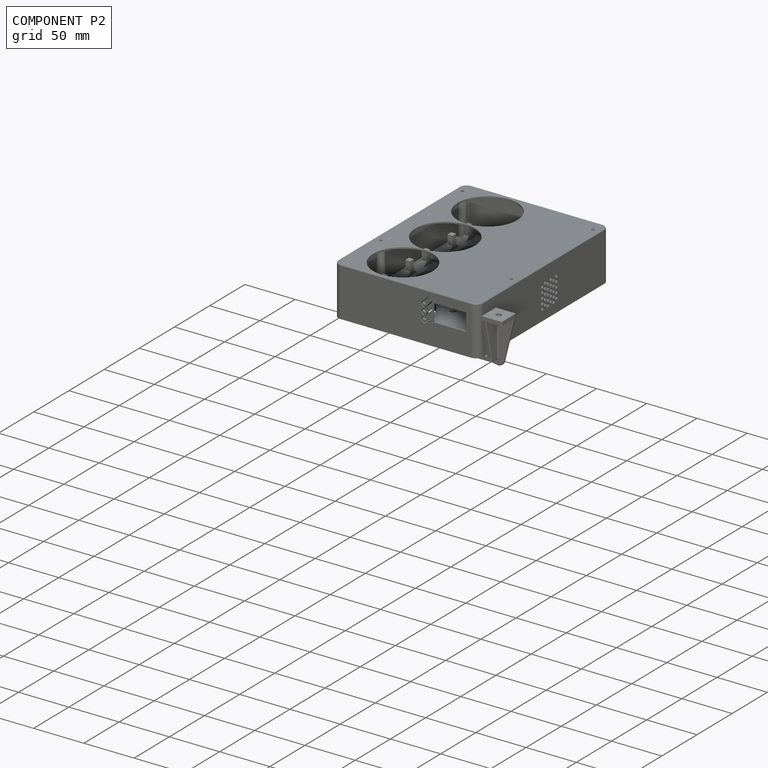
[diagram: component P2 — assembled]
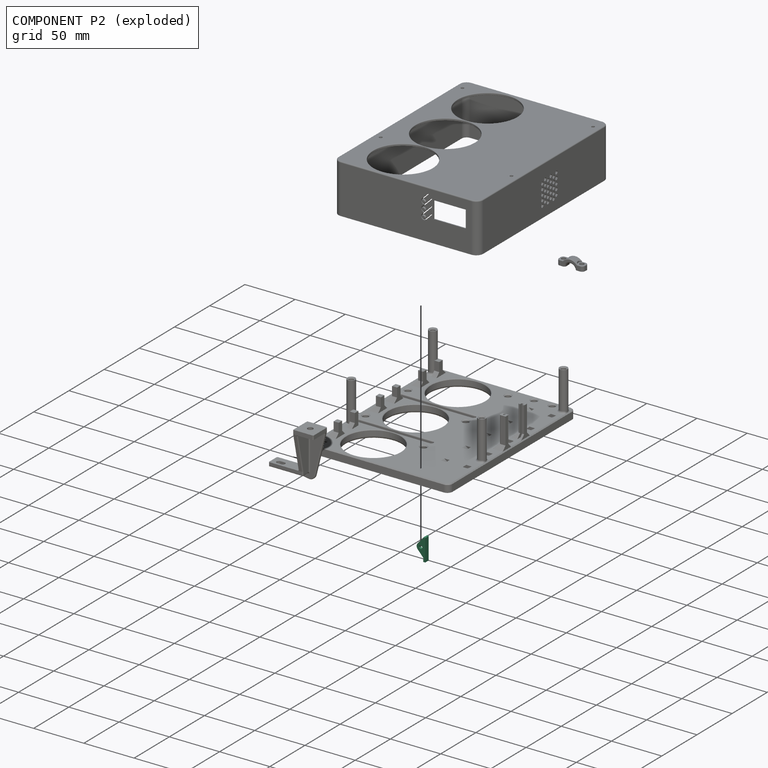
[diagram: component P2 — exploded]
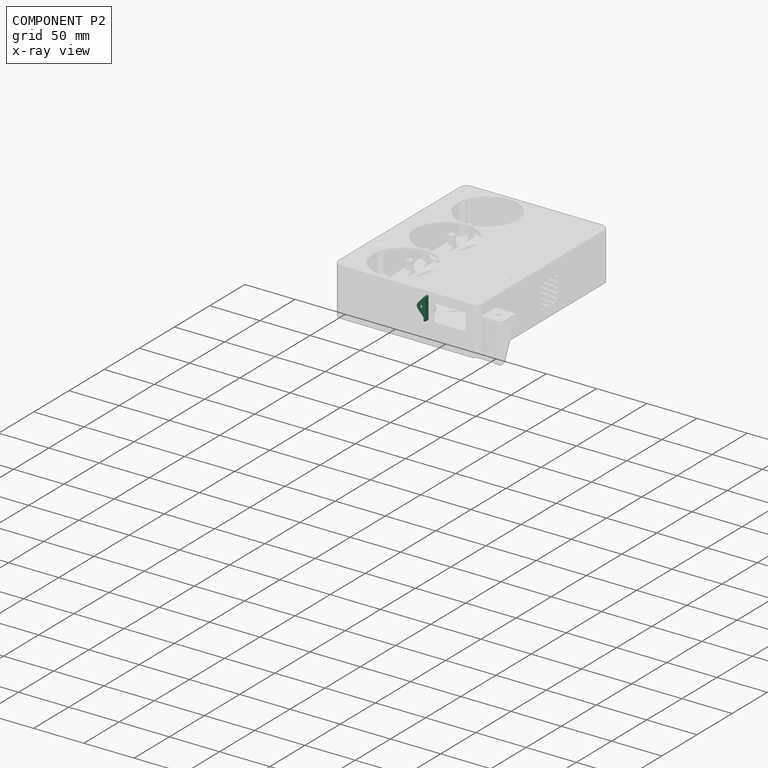
[diagram: component P2 — x-ray view]
COMPONENT P2 — recipe-attached ("display_clamp", modeled in this document).
Held by: resting contact with P1 (derived edge).
Construction recipe (the document's own serialized feature program — sketch geometry with constraints, then the solid features built on it; lengths are millimeters unless a unit is written):

FEATURE [Sketcher::SketchObject] Sketch012
  ArcFitTolerance = 1e-06
  AttachmentSupport = -> [XZ_Plane003]
  ExternalTypes = [0]
  FullyConstrained = true
  MakeInternals = false
  MapMode = 5
  Placement = pos=(0,0,0) rot=(1,0,0;1.5708rad)
  sketch-geometry (16):
    g0: ArcOfCircle CenterX=6.5 CenterY=0 CenterZ=0 NormalX=0 NormalY=0 NormalZ=1 AngleXU=0 Radius=4 StartAngle=5.5516 EndAngle=7.01477
    g1: LineSegment StartX=0 StartY=0 StartZ=0 EndX=0 EndY=11 EndZ=0
    g2: LineSegment StartX=0 StartY=0 StartZ=0 EndX=0 EndY=-11 EndZ=0
    g3: LineSegment StartX=0 StartY=11 StartZ=0 EndX=2 EndY=11 EndZ=0
    g4: LineSegment StartX=0 StartY=-11 StartZ=0 EndX=2 EndY=-11 EndZ=0
    g5: LineSegment StartX=2 StartY=11 StartZ=0 EndX=2 EndY=-11 EndZ=0
    g6: LineSegment StartX=2 StartY=-11 StartZ=0 EndX=9.47647 EndY=-2.67219 EndZ=0
    g7: LineSegment StartX=9.47647 StartY=2.67219 StartZ=0 EndX=2 EndY=11 EndZ=0
    g8: Circle CenterX=6.5 CenterY=0 CenterZ=0 NormalX=0 NormalY=0 NormalZ=1 AngleXU=0 Radius=1.55
    g9: LineSegment StartX=0 StartY=11 StartZ=0 EndX=8.53984 EndY=1.91809 EndZ=0
    g10: LineSegment StartX=0 StartY=-11 StartZ=0 EndX=8.53984 EndY=-1.91809 EndZ=0
    g11: ArcOfCircle CenterX=6.5 CenterY=0 CenterZ=0 NormalX=0 NormalY=0 NormalZ=1 AngleXU=0 Radius=2.8 StartAngle=5.52854 EndAngle=7.03783
    g12: Circle [constr] CenterX=6.5 CenterY=0 CenterZ=0 NormalX=0 NormalY=0 NormalZ=1 AngleXU=0 Radius=4
    g13: GeomPoint [constr] X=2 Y=0 Z=0
    g14: LineSegment [constr] StartX=6.5 StartY=0 StartZ=0 EndX=9.47647 EndY=2.67219 EndZ=0
    g15: LineSegment [constr] StartX=6.5 StartY=0 StartZ=0 EndX=9.47647 EndY=-2.67219 EndZ=0
  constraints (37):
    c: Radius(g0) = 4
    c: Distance(g1) = 11
    c: PointOnObject(g1,g-1)
    c: PointOnObject(g1,g-2)
    c: Vertical(g1)
    c: Distance(g2) = 11
    c: Coincident(g2,g1)
    c: PointOnObject(g2,g-2)
    c: Distance(g3) = 2
    c: Coincident(g3,g1)
    c: Horizontal(g3)
    c: Distance(g4) = 2
    c: Coincident(g4,g2)
    c: Horizontal(g4)
    c: Coincident(g5,g3)
    c: Coincident(g5,g4)
    c: Coincident(g6,g4)
    c: Tangent(g6,g0) = -1.5708
    c: Tangent(g7,g0) = -1.5708
    c: Diameter(g8) = 3.1
    c: Coincident(g8,g0)
    c: Coincident(g11,g0)
    c: Tangent(g11,g10) = -1.5708
    c: Coincident(g12,g0)
    c: Symmetric(g5,g5,g13)
    c: Coincident(g10,g2)
    c: Coincident(g9,g1)
    c: Coincident(g7,g3)
    c: PointOnObject(g0,g12)
    c: Coincident(g14,g0)
    c: Coincident(g14,g0)
    c: Coincident(g15,g0)
    c: Coincident(g15,g0)
    c: PointOnObject(g0,g-1)
    c: Diameter(g11) = 5.6
    c: Tangent(g11,g9) = 1.5708
    c: DistanceX(g13,g0) = 4.5
FEATURE [PartDesign::Pad] Pad009
  Direction = (0,-1,2e-16)
  Length = 2.8
  Length2 = 10
  Placement = pos=(0,0,0) rot=(1,0,0;1.5708rad)
  Profile = -> Sketch012 [Edge10,Edge4,Edge3,Edge8,Edge9]
  ReferenceAxis = -> Sketch012 [N_Axis]
  Refine = true
  Reversed = true
  Suppressed = false
  Type = 0
FEATURE [PartDesign::Pad] Pad010
  BaseFeature = -> Pad009
  Direction = (0,-1,2e-16)
  Length = 2
  Length2 = 10
  Placement = pos=(0,0,0) rot=(1,0,0;1.5708rad)
  Profile = -> Sketch012 [Edge10,Edge4,Edge5,Edge1,Edge2,Edge8,Edge9,Edge12]
  ReferenceAxis = -> Sketch012 [N_Axis]
  Refine = true
  Suppressed = false
  Type = 0
FEATURE [PartDesign::Pad] Pad011
  BaseFeature = -> Pad010
  Direction = (0,-1,2e-16)
  Length = 4
  Length2 = 10
  Placement = pos=(0,0,0) rot=(1,0,0;1.5708rad)
  Profile = -> Sketch012 [Edge11,Edge6,Edge7,Edge2,Edge1,Edge5,Edge4,Edge8]
  ReferenceAxis = -> Sketch012 [N_Axis]
  Refine = true
  Suppressed = false
  Type = 0
FEATURE [Sketcher::SketchObject] Sketch013
  ArcFitTolerance = 1e-06
  AttachmentSupport = -> [Pad011]
  ExternalTypes = [0]
  FullyConstrained = false
  MakeInternals = false
  MapMode = 5
  Placement = pos=(0,5.3e-15,11) rot=(0,0,1;3.14159rad)
  sketch-geometry (3):
    g0: LineSegment StartX=-6.7972 StartY=4.32612 StartZ=0 EndX=0.320178 EndY=2.03056 EndZ=0
    g1: LineSegment StartX=0.320178 StartY=2.03056 StartZ=0 EndX=0.320178 EndY=4.32612 EndZ=0
    g2: LineSegment StartX=0.320178 StartY=4.32612 StartZ=0 EndX=-6.7972 EndY=4.32612 EndZ=0
  constraints (5):
    c: Coincident(g0,g1)
    c: Vertical(g1)
    c: Coincident(g1,g2)
    c: Coincident(g2,g0)
    c: Horizontal(g2)
FEATURE [PartDesign::Pocket] Pocket016
  BaseFeature = -> Pad011
  Direction = (0,0,-1)
  Length = 5
  Length2 = 5
  Placement = pos=(0,0,0) rot=(1,0,0;1.5708rad)
  Profile = -> Sketch013
  ReferenceAxis = -> Sketch013 [N_Axis]
  Refine = true
  Suppressed = false
  Type = 1
FEATURE [PartDesign::Body] Body002  label="display_clamp"
  AllowCompound = false
  Group = -> [Sketch012,Pad009,Pad010,Pad011,Sketch013,Pocket016]
  Origin = -> Origin006
  Placement = pos=(82.8284,-158.939,12.4328) rot=(0,0,1;3.14159rad)
  Tip = -> Pocket016
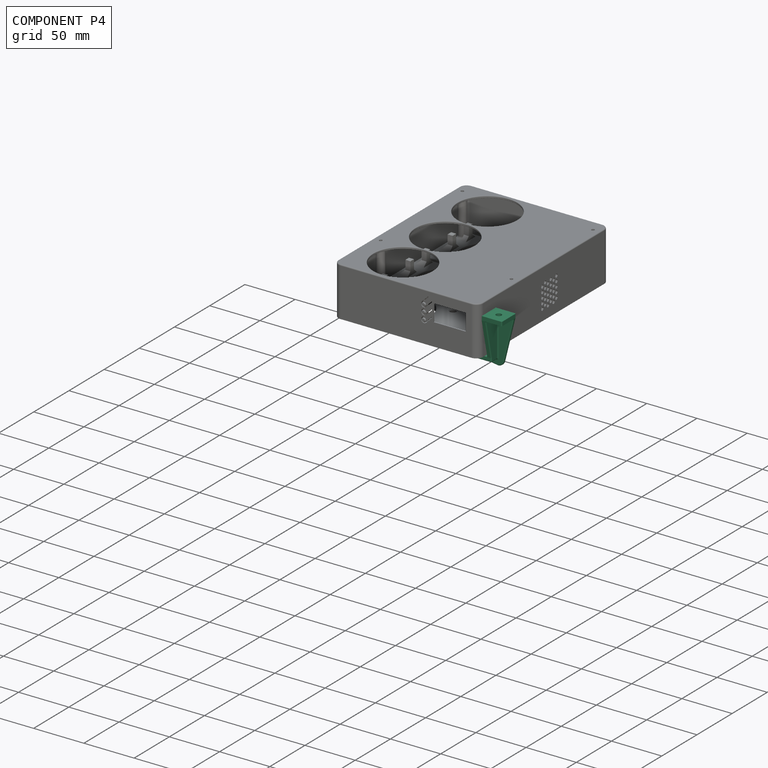
[diagram: component P4 — assembled]
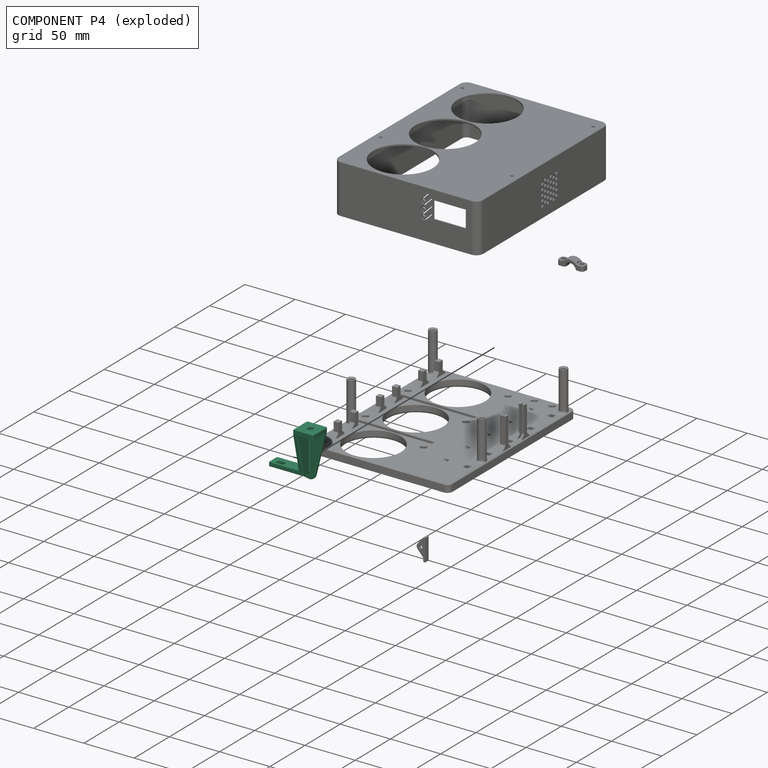
[diagram: component P4 — exploded]
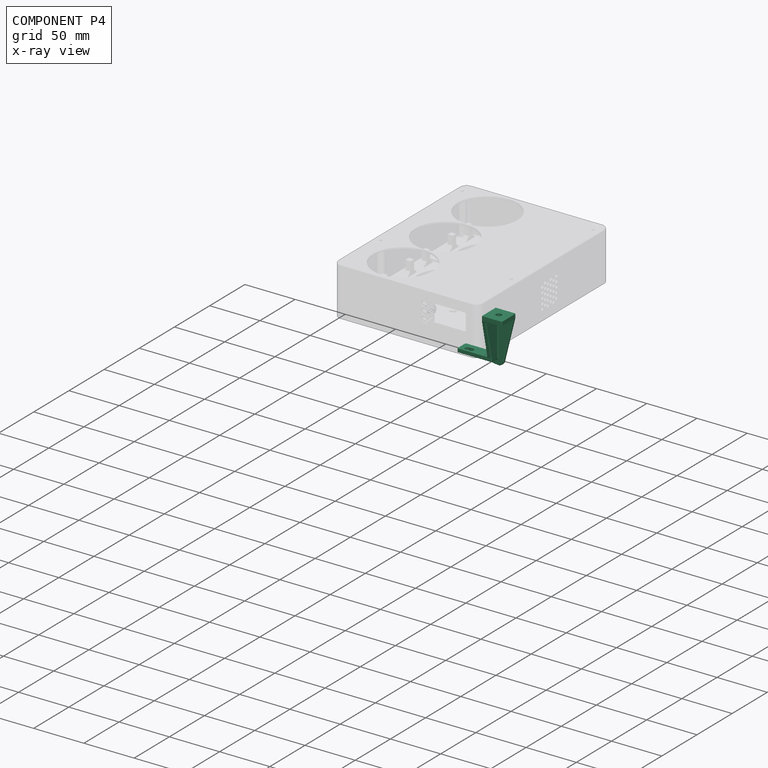
[diagram: component P4 — x-ray view]
COMPONENT P4 — recipe-attached ("mount_bracket", modeled in this document).
Held by: FASTENED mate "Joint001" to P0; resting contact with P1 (derived edge).
Construction recipe (the document's own serialized feature program — sketch geometry with constraints, then the solid features built on it; lengths are millimeters unless a unit is written):

FEATURE [Sketcher::SketchObject] Sketch016
  ArcFitTolerance = 1e-06
  AttachmentSupport = -> [XZ_Plane005]
  ExternalTypes = [0]
  FullyConstrained = true
  MakeInternals = false
  MapMode = 5
  Placement = pos=(0,0,0) rot=(1,0,0;1.5708rad)
  sketch-geometry (11):
    g0: LineSegment StartX=0 StartY=0 StartZ=0 EndX=-30 EndY=0 EndZ=0
    g1: LineSegment StartX=-30 StartY=0 StartZ=0 EndX=-30 EndY=-4 EndZ=0
    g2: LineSegment StartX=-30 StartY=-4 StartZ=0 EndX=4 EndY=-4 EndZ=0
    g3: LineSegment StartX=4 StartY=-4 StartZ=0 EndX=4 EndY=36 EndZ=0
    g4: LineSegment StartX=4 StartY=36 StartZ=0 EndX=20 EndY=36 EndZ=0
    g5: LineSegment StartX=20 StartY=36 StartZ=0 EndX=20 EndY=40 EndZ=0
    g6: LineSegment StartX=20 StartY=40 StartZ=0 EndX=0 EndY=40 EndZ=0
    g7: LineSegment StartX=0 StartY=40 StartZ=0 EndX=0 EndY=0 EndZ=0
    g8: LineSegment StartX=-30 StartY=-4 StartZ=0 EndX=2.94118 EndY=-9.90584 EndZ=0
    g9: LineSegment StartX=9.82691 StartY=-5.43077 StartZ=0 EndX=20 EndY=36 EndZ=0
    g10: ArcOfCircle CenterX=4 CenterY=-4 CenterZ=0 NormalX=0 NormalY=0 NormalZ=1 AngleXU=0 Radius=6 StartAngle=4.53499 EndAngle=6.0424
  constraints (29):
    c: Coincident(g-1,g0)
    c: PointOnObject(g0,g-1)
    c: Coincident(g0,g1)
    c: Coincident(g1,g2)
    c: Horizontal(g2)
    c: Coincident(g2,g3)
    c: Vertical(g3)
    c: Coincident(g3,g4)
    c: Horizontal(g4)
    c: Coincident(g4,g5)
    c: Vertical(g5)
    c: Coincident(g5,g6)
    c: PointOnObject(g6,g-2)
    c: Horizontal(g6)
    c: Coincident(g6,g7)
    c: Coincident(g7,g0)
    c: DistanceX(g0,g0) = 30
    c: Vertical(g1)
    c: DistanceY(g1,g1) = 4
    c: DistanceX(g0,g2) = 4
    c: DistanceY(g5,g5) = 4
    c: DistanceX(g6,g6) = 20
    c: DistanceY(g7,g7) = 40
    c: Coincident(g1,g8)
    c: Coincident(g9,g4)
    c: Coincident(g10,g2)
    c: Tangent(g10,g8) = -1.5708
    c: Tangent(g10,g9) = -1.5708
    c: Radius(g10) = 6
FEATURE [PartDesign::Pad] Pad014
  Direction = (0,-1,2e-16)
  Length = 3
  Length2 = 10
  Placement = pos=(0,0,0) rot=(1,0,0;1.5708rad)
  Profile = -> Sketch016 [Edge3,Edge5,Edge6,Edge4,Edge8,Edge7]
  ReferenceAxis = -> Sketch016 [N_Axis]
  Refine = true
  Suppressed = false
  Type = 0
FEATURE [PartDesign::Pad] Pad015
  BaseFeature = -> Pad014
  Direction = (0,-1,0)
  Length = 20
  Length2 = 10
  Placement = pos=(0,0,0) rot=(1,0,0;1.5708rad)
  Profile = -> Sketch016 [Edge3,Edge7,Edge8,Edge9,Edge10,Edge11,Edge1,Edge2]
  ReferenceAxis = -> Sketch016 [N_Axis]
  Refine = true
  Suppressed = false
  Type = 0
FEATURE [Sketcher::SketchObject] Sketch017
  ArcFitTolerance = 1e-06
  AttachmentSupport = -> [Pad015]
  ExternalTypes = [0]
  FullyConstrained = true
  MakeInternals = false
  MapMode = 5
  Placement = pos=(20,0,0) rot=(0.707107,0,0.707107;3.14159rad)
  sketch-geometry (4):
    g0: LineSegment StartX=45 StartY=22 StartZ=0 EndX=0 EndY=12 EndZ=0
    g1: LineSegment StartX=-10 StartY=12 StartZ=0 EndX=-10 EndY=22 EndZ=0
    g2: LineSegment StartX=-10 StartY=22 StartZ=0 EndX=45 EndY=22 EndZ=0
    g3: LineSegment StartX=-10 StartY=12 StartZ=0 EndX=0 EndY=12 EndZ=0
  constraints (12):
    c: Coincident(g1,g2)
    c: Coincident(g2,g0)
    c: Coincident(g3,g1)
    c: Coincident(g3,g0)
    c: Horizontal(g3)
    c: Vertical(g1)
    c: Horizontal(g2)
    c: PointOnObject(g0,g-2)
    c: DistanceX(g3,g3) = 10
    c: DistanceY(g0) = 12
    c: DistanceY(g1) = 22
    c: DistanceX(g0) = 45
FEATURE [PartDesign::Pocket] Pocket019
  BaseFeature = -> Pad015
  Direction = (-1,0,2e-16)
  Length = 5
  Length2 = 5
  Placement = pos=(0,0,0) rot=(1,0,0;1.5708rad)
  Profile = -> Sketch017
  ReferenceAxis = -> Sketch017 [N_Axis]
  Refine = true
  Suppressed = false
  Type = 1
FEATURE [Sketcher::SketchObject] Sketch018
  ArcFitTolerance = 1e-06
  AttachmentSupport = -> [Pocket019]
  ExternalTypes = [0]
  FullyConstrained = true
  MakeInternals = false
  MapMode = 5
  Placement = pos=(0,1.76e-14,40) rot=(0,0,1;3.14159rad)
  sketch-geometry (5):
    g0: Circle CenterX=-10 CenterY=10 CenterZ=0 NormalX=0 NormalY=0 NormalZ=1 AngleXU=0 Radius=2.75
    g1: ArcOfCircle CenterX=23 CenterY=7.5 CenterZ=0 NormalX=0 NormalY=0 NormalZ=1 AngleXU=0 Radius=2.25 StartAngle=4.71239 EndAngle=7.85398
    g2: ArcOfCircle CenterX=19 CenterY=7.5 CenterZ=0 NormalX=0 NormalY=0 NormalZ=1 AngleXU=0 Radius=2.25 StartAngle=1.5708 EndAngle=4.71239
    g3: LineSegment StartX=23 StartY=5.25 StartZ=0 EndX=19 EndY=5.25 EndZ=0
    g4: LineSegment StartX=23 StartY=9.75 StartZ=0 EndX=19 EndY=9.75 EndZ=0
  constraints (13):
    c: DistanceY(g0) = 10
    c: DistanceX(g0) = -10
    c: Diameter(g0) = 5.5
    c: Tangent(g1,g3) = 1.5708
    c: Tangent(g1,g4) = -1.5708
    c: Tangent(g2,g3) = 1.5708
    c: Tangent(g2,g4) = -1.5708
    c: Equal(g1,g2)
    c: Horizontal(g4)
    c: DistanceY(g-1,g2) = 7.5
    c: DistanceX(g2,g1) = 4
    c: DistanceX(g-1,g2) = 19
    c: Diameter(g1) = 4.5
FEATURE [PartDesign::Pocket] Pocket020
  BaseFeature = -> Pocket019
  Direction = (0,0,-1)
  Length = 5
  Length2 = 5
  Placement = pos=(0,0,0) rot=(1,0,0;1.5708rad)
  Profile = -> Sketch018
  ReferenceAxis = -> Sketch018 [N_Axis]
  Refine = true
  Suppressed = false
  Type = 1
FEATURE [PartDesign::Fillet] Fillet013
  Base = -> Pocket020 [Edge20,Edge12,Edge41,Edge31,Edge47,Edge46,Edge40,Edge18,Edge17,Edge11,Edge10,Edge33,Edge22,Edge19,Edge13]
  BaseFeature = -> Pocket020
  Placement = pos=(0,0,0) rot=(1,0,0;1.5708rad)
  Radius = 1
  Refine = true
  SupportTransform = false
  Suppressed = false
  UseAllEdges = false
FEATURE [PartDesign::Body] Body004  label="mount_bracket"
  AllowCompound = false
  Group = -> [Sketch016,Pad014,Pad015,Sketch017,Pocket019,Sketch018,Pocket020,Fillet013]
  Origin = -> Origin010
  Placement = pos=(142.328,-146.439,-15.5672) rot=(0,0,1;0rad)
  Tip = -> Fillet013
PROVENANCE & LICENSES
Assembly and component geometry: a FreeCAD (.FCStd) document from a public repository crawl; components, placements and joints were extracted with FreeCAD and each solid tessellated.
Construction recipes: the document's own serialized feature recipes (and, for linked parts, the recipes of companion documents from the same project).
License: gpl-3.0.
Joints: native FreeCAD joints and A2plus constraints are mapped to standard mate types; edges marked 'derived from contact' connect touching components and are measured from the geometry, not modeled.
Verification: 5 of this assembly's 5 components carry a construction recipe (5 from this document itself); the rest are geometry-only. Every component's tessellation passed the extraction mesh gates (mesh-volume checksum against the B-rep where available, bounding-box inflation <= 2%).
Renders: orthographic iso camera (az 35 / el 25); the floor grid conveys scale (grid pitch printed in each image; no ruler). In the exploded view each component is displaced by its stored offset vector: the offsets alone carry the explosion direction (mate normal/axis signs are not orientation cues and do not encode it), and separation distances are assigned per mate-chain, not proportionally to assembly-order depth.
